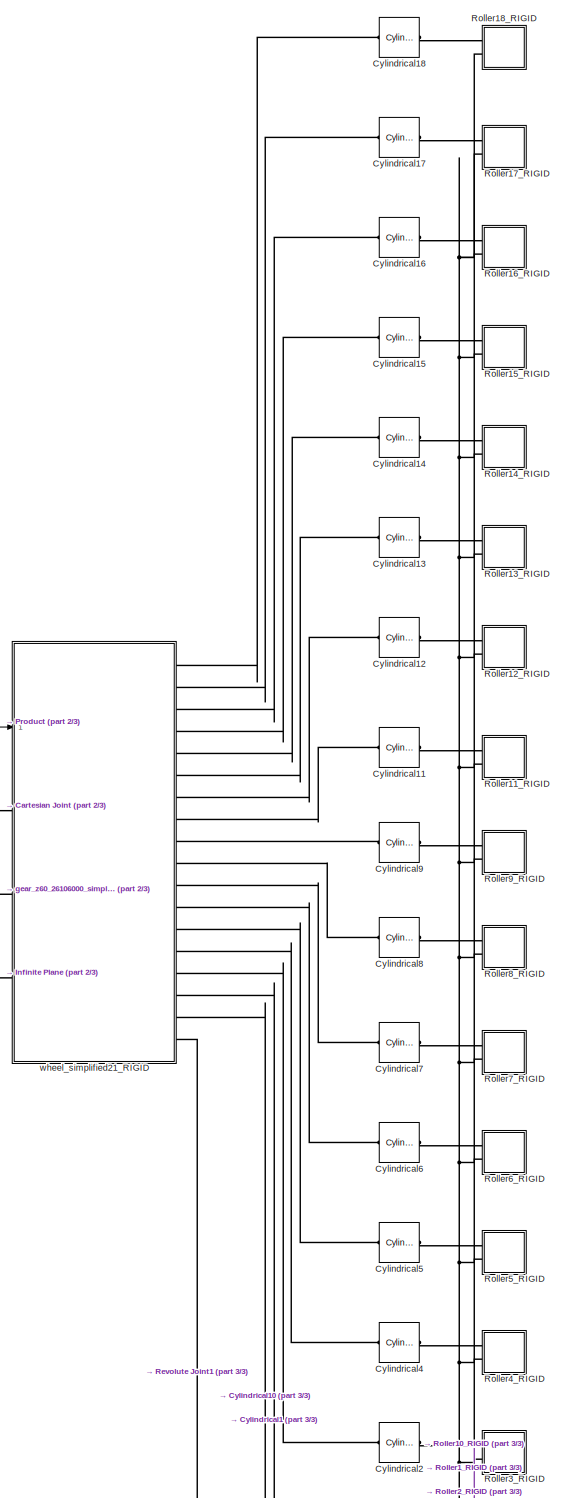
[diagram: root canvas - part 1/3, right side, full height]
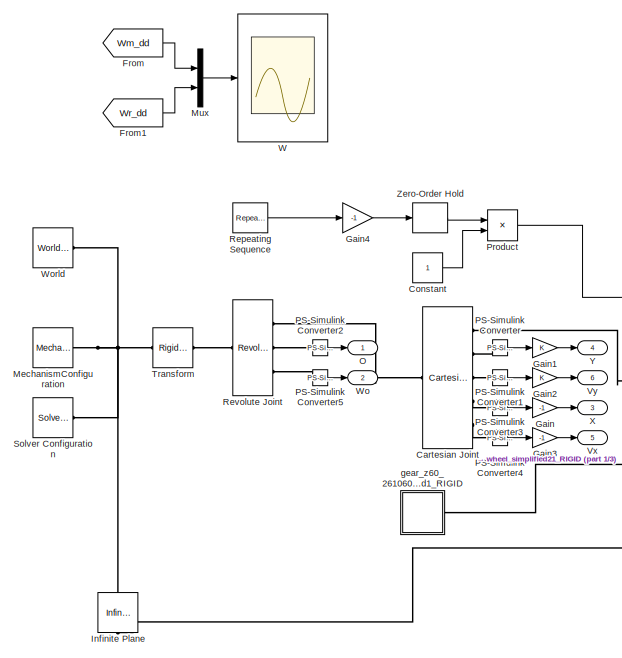
[diagram: root canvas - part 2/3, middle left region]
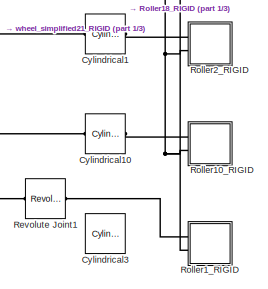
[diagram: root canvas - part 3/3, bottom right region]
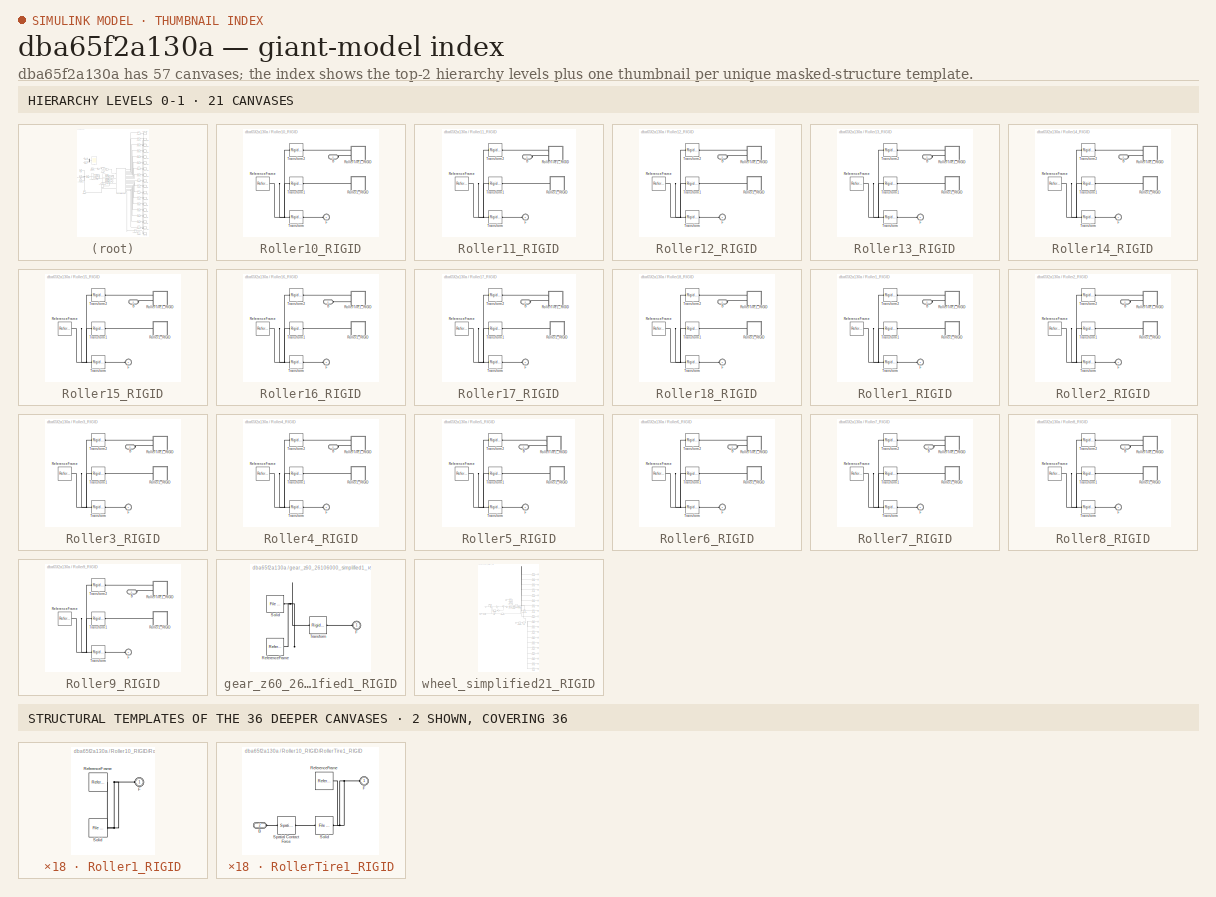
[diagram: thumbnail index - top-2 hierarchy levels (21 canvases) + 2 structural-template representatives of the remaining 36 canvases]
MODEL slx_dba65f2a130a
KIND model
CONFIG AbsTol = auto
CONFIG EnableMultiTasking = off
CONFIG FixedStep = auto
CONFIG MaxStep = auto
CONFIG MinStep = auto
CONFIG RelTol = 1e-3
CONFIG SampleTimeConstraint = Unconstrained
CONFIG SolverName = VariableStepAuto
CONFIG StartTime = 0.0
CONFIG StopTime = 1
WORKSPACE source: external: MATLAB File  (data not in archive)
BLOCK [Reference] Cartesian Joint  REF=sm_lib/Joints/Cartesian
Joint
  Ports = [0, 0, 0, 0, 0, 1, 5]
  SourceBlock = sm_lib/Joints/Cartesian\nJoint
  SourceProductBaseCode = MS
  SourceType = Cartesian\nJoint
BLOCK [Constant] Constant
BLOCK [Reference] Cylindrical1  REF=sm_lib/Joints/Cylindrical
Joint
  Commented = on
  Ports = [0, 0, 0, 0, 0, 1, 1]
  SourceBlock = sm_lib/Joints/Cylindrical\nJoint
  SourceProductBaseCode = MS
  SourceType = Cylindrical\nJoint
BLOCK [Reference] Cylindrical10  REF=sm_lib/Joints/Cylindrical
Joint
  Commented = on
  Ports = [0, 0, 0, 0, 0, 1, 1]
  SourceBlock = sm_lib/Joints/Cylindrical\nJoint
  SourceProductBaseCode = MS
  SourceType = Cylindrical\nJoint
BLOCK [Reference] Cylindrical11  REF=sm_lib/Joints/Cylindrical
Joint
  Commented = on
  Ports = [0, 0, 0, 0, 0, 1, 1]
  SourceBlock = sm_lib/Joints/Cylindrical\nJoint
  SourceProductBaseCode = MS
  SourceType = Cylindrical\nJoint
BLOCK [Reference] Cylindrical12  REF=sm_lib/Joints/Cylindrical
Joint
  Commented = on
  Ports = [0, 0, 0, 0, 0, 1, 1]
  SourceBlock = sm_lib/Joints/Cylindrical\nJoint
  SourceProductBaseCode = MS
  SourceType = Cylindrical\nJoint
BLOCK [Reference] Cylindrical13  REF=sm_lib/Joints/Cylindrical
Joint
  Commented = on
  Ports = [0, 0, 0, 0, 0, 1, 1]
  SourceBlock = sm_lib/Joints/Cylindrical\nJoint
  SourceProductBaseCode = MS
  SourceType = Cylindrical\nJoint
BLOCK [Reference] Cylindrical14  REF=sm_lib/Joints/Cylindrical
Joint
  Commented = on
  Ports = [0, 0, 0, 0, 0, 1, 1]
  SourceBlock = sm_lib/Joints/Cylindrical\nJoint
  SourceProductBaseCode = MS
  SourceType = Cylindrical\nJoint
BLOCK [Reference] Cylindrical15  REF=sm_lib/Joints/Cylindrical
Joint
  Commented = on
  Ports = [0, 0, 0, 0, 0, 1, 1]
  SourceBlock = sm_lib/Joints/Cylindrical\nJoint
  SourceProductBaseCode = MS
  SourceType = Cylindrical\nJoint
BLOCK [Reference] Cylindrical16  REF=sm_lib/Joints/Cylindrical
Joint
  Commented = on
  Ports = [0, 0, 0, 0, 0, 1, 1]
  SourceBlock = sm_lib/Joints/Cylindrical\nJoint
  SourceProductBaseCode = MS
  SourceType = Cylindrical\nJoint
BLOCK [Reference] Cylindrical17  REF=sm_lib/Joints/Cylindrical
Joint
  Commented = on
  Ports = [0, 0, 0, 0, 0, 1, 1]
  SourceBlock = sm_lib/Joints/Cylindrical\nJoint
  SourceProductBaseCode = MS
  SourceType = Cylindrical\nJoint
BLOCK [Reference] Cylindrical18  REF=sm_lib/Joints/Cylindrical
Joint
  Commented = on
  Ports = [0, 0, 0, 0, 0, 1, 1]
  SourceBlock = sm_lib/Joints/Cylindrical\nJoint
  SourceProductBaseCode = MS
  SourceType = Cylindrical\nJoint
BLOCK [Reference] Cylindrical2  REF=sm_lib/Joints/Cylindrical
Joint
  Commented = on
  Ports = [0, 0, 0, 0, 0, 1, 1]
  SourceBlock = sm_lib/Joints/Cylindrical\nJoint
  SourceProductBaseCode = MS
  SourceType = Cylindrical\nJoint
BLOCK [Reference] Cylindrical3  REF=sm_lib/Joints/Cylindrical
Joint
  Commented = on
  Ports = [0, 0, 0, 0, 0, 1, 1]
  SourceBlock = sm_lib/Joints/Cylindrical\nJoint
  SourceProductBaseCode = MS
  SourceType = Cylindrical\nJoint
BLOCK [Reference] Cylindrical4  REF=sm_lib/Joints/Cylindrical
Joint
  Commented = on
  Ports = [0, 0, 0, 0, 0, 1, 1]
  SourceBlock = sm_lib/Joints/Cylindrical\nJoint
  SourceProductBaseCode = MS
  SourceType = Cylindrical\nJoint
BLOCK [Reference] Cylindrical5  REF=sm_lib/Joints/Cylindrical
Joint
  Commented = on
  Ports = [0, 0, 0, 0, 0, 1, 1]
  SourceBlock = sm_lib/Joints/Cylindrical\nJoint
  SourceProductBaseCode = MS
  SourceType = Cylindrical\nJoint
BLOCK [Reference] Cylindrical6  REF=sm_lib/Joints/Cylindrical
Joint
  Commented = on
  Ports = [0, 0, 0, 0, 0, 1, 1]
  SourceBlock = sm_lib/Joints/Cylindrical\nJoint
  SourceProductBaseCode = MS
  SourceType = Cylindrical\nJoint
BLOCK [Reference] Cylindrical7  REF=sm_lib/Joints/Cylindrical
Joint
  Commented = on
  Ports = [0, 0, 0, 0, 0, 1, 1]
  SourceBlock = sm_lib/Joints/Cylindrical\nJoint
  SourceProductBaseCode = MS
  SourceType = Cylindrical\nJoint
BLOCK [Reference] Cylindrical8  REF=sm_lib/Joints/Cylindrical
Joint
  Commented = on
  Ports = [0, 0, 0, 0, 0, 1, 1]
  SourceBlock = sm_lib/Joints/Cylindrical\nJoint
  SourceProductBaseCode = MS
  SourceType = Cylindrical\nJoint
BLOCK [Reference] Cylindrical9  REF=sm_lib/Joints/Cylindrical
Joint
  Commented = on
  Ports = [0, 0, 0, 0, 0, 1, 1]
  SourceBlock = sm_lib/Joints/Cylindrical\nJoint
  SourceProductBaseCode = MS
  SourceType = Cylindrical\nJoint
BLOCK [From] From
  GotoTag = Wm_dd
  TagVisibility = global
BLOCK [From] From1
  GotoTag = Wr_dd
  TagVisibility = global
BLOCK [Gain] Gain
  Gain = -1
BLOCK [Gain] Gain1
BLOCK [Gain] Gain2
BLOCK [Gain] Gain3
  Gain = -1
BLOCK [Gain] Gain4
  Gain = -1
BLOCK [Reference] Infinite Plane  REF=sm_lib/Curves and Surfaces/Infinite Plane
  NameLocation = left
  Ports = [0, 0, 0, 0, 0, 1, 1]
  SourceBlock = sm_lib/Curves and Surfaces/Infinite Plane
  SourceProductBaseCode = MS
  SourceType = Infinite Plane
BLOCK [Reference] MechanismConfiguration  REF=sm_lib/Utilities/Mechanism
Configuration
  Ports = [0, 0, 0, 0, 0, 0, 1]
  SourceBlock = sm_lib/Utilities/Mechanism\nConfiguration
  SourceProductBaseCode = MS
  SourceType = Mechanism\nConfiguration
BLOCK [Mux] Mux
  DisplayOption = bar
  Inputs = 2
  Ports = [2, 1]
BLOCK [Outport] O
BLOCK [Reference] PS-Simulink Converter  REF=nesl_utility/PS-Simulink
Converter
  Ports = [0, 1, 0, 0, 0, 1]
  SourceBlock = nesl_utility/PS-Simulink\nConverter
  SourceProductBaseCode = SS
  SourceType = PS-Simulink\nConverter
BLOCK [Reference] PS-Simulink Converter1  REF=nesl_utility/PS-Simulink
Converter
  Ports = [0, 1, 0, 0, 0, 1]
  SourceBlock = nesl_utility/PS-Simulink\nConverter
  SourceProductBaseCode = SS
  SourceType = PS-Simulink\nConverter
BLOCK [Reference] PS-Simulink Converter2  REF=nesl_utility/PS-Simulink
Converter
  Ports = [0, 1, 0, 0, 0, 1]
  SourceBlock = nesl_utility/PS-Simulink\nConverter
  SourceProductBaseCode = SS
  SourceType = PS-Simulink\nConverter
BLOCK [Reference] PS-Simulink Converter3  REF=nesl_utility/PS-Simulink
Converter
  Ports = [0, 1, 0, 0, 0, 1]
  SourceBlock = nesl_utility/PS-Simulink\nConverter
  SourceProductBaseCode = SS
  SourceType = PS-Simulink\nConverter
BLOCK [Reference] PS-Simulink Converter4  REF=nesl_utility/PS-Simulink
Converter
  Ports = [0, 1, 0, 0, 0, 1]
  SourceBlock = nesl_utility/PS-Simulink\nConverter
  SourceProductBaseCode = SS
  SourceType = PS-Simulink\nConverter
BLOCK [Reference] PS-Simulink Converter5  REF=nesl_utility/PS-Simulink
Converter
  Ports = [0, 1, 0, 0, 0, 1]
  SourceBlock = nesl_utility/PS-Simulink\nConverter
  SourceProductBaseCode = SS
  SourceType = PS-Simulink\nConverter
BLOCK [Product] Product
  Ports = [2, 1]
BLOCK [Reference] Repeating Sequence  REF=simulink/Sources/Repeating
Sequence
  Ports = [0, 1]
  SourceBlock = simulink/Sources/Repeating\nSequence
  SourceProductBaseCode = SL
  SourceType = Repeating table
BLOCK [Reference] Revolute Joint  REF=sm_lib/Joints/Revolute Joint
  Ports = [0, 0, 0, 0, 0, 1, 3]
  SourceBlock = sm_lib/Joints/Revolute Joint
  SourceProductBaseCode = MS
  SourceType = Revolute Joint
BLOCK [Reference] Revolute Joint1  REF=sm_lib/Joints/Revolute Joint
  Commented = on
  Ports = [0, 0, 0, 0, 0, 1, 1]
  SourceBlock = sm_lib/Joints/Revolute Joint
  SourceProductBaseCode = MS
  SourceType = Revolute Joint
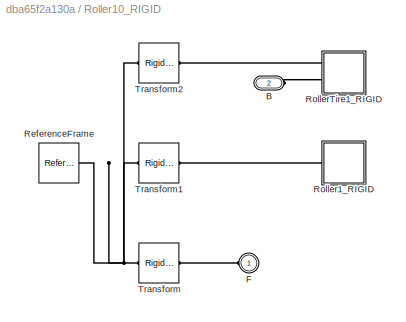
BLOCK [SubSystem] Roller10_RIGID
  Commented = on
  Ports = [0, 0, 0, 0, 0, 2]
  RequestExecContextInheritance = off
BLOCK [PMIOPort] Roller10_RIGID/B
  Port = 2
  Side = Left
BLOCK [PMIOPort] Roller10_RIGID/F
  Side = Left
BLOCK [Reference] Roller10_RIGID/ReferenceFrame  REF=sm_lib/Frames and
Transforms/Reference
Frame
  Ports = [0, 0, 0, 0, 0, 0, 1]
  SourceBlock = sm_lib/Frames and\nTransforms/Reference\nFrame
  SourceProductBaseCode = MS
  SourceType = Reference\nFrame
BLOCK [SubSystem] Roller10_RIGID/Roller1_RIGID
  Ports = [0, 0, 0, 0, 0, 1]
  RequestExecContextInheritance = off
BLOCK [PMIOPort] Roller10_RIGID/Roller1_RIGID/F
  Side = Left
BLOCK [Reference] Roller10_RIGID/Roller1_RIGID/ReferenceFrame  REF=sm_lib/Frames and
Transforms/Reference
Frame
  Ports = [0, 0, 0, 0, 0, 0, 1]
  SourceBlock = sm_lib/Frames and\nTransforms/Reference\nFrame
  SourceProductBaseCode = MS
  SourceType = Reference\nFrame
BLOCK [Reference] Roller10_RIGID/Roller1_RIGID/Solid  REF=sm_lib/Body Elements/File Solid
  Ports = [0, 0, 0, 0, 0, 0, 1]
  SourceBlock = sm_lib/Body Elements/File Solid
  SourceProductBaseCode = MS
  SourceType = File Solid
BLOCK [SubSystem] Roller10_RIGID/RollerTire1_RIGID
  Ports = [0, 0, 0, 0, 0, 2]
  RequestExecContextInheritance = off
BLOCK [PMIOPort] Roller10_RIGID/RollerTire1_RIGID/B
  Port = 2
  Side = Left
BLOCK [PMIOPort] Roller10_RIGID/RollerTire1_RIGID/F
  Side = Left
BLOCK [Reference] Roller10_RIGID/RollerTire1_RIGID/ReferenceFrame  REF=sm_lib/Frames and
Transforms/Reference
Frame
  Ports = [0, 0, 0, 0, 0, 0, 1]
  SourceBlock = sm_lib/Frames and\nTransforms/Reference\nFrame
  SourceProductBaseCode = MS
  SourceType = Reference\nFrame
BLOCK [Reference] Roller10_RIGID/RollerTire1_RIGID/Solid  REF=sm_lib/Body Elements/File Solid
  Ports = [0, 0, 0, 0, 0, 1, 1]
  SourceBlock = sm_lib/Body Elements/File Solid
  SourceProductBaseCode = MS
  SourceType = File Solid
BLOCK [Reference] Roller10_RIGID/RollerTire1_RIGID/Spatial Contact Force  REF=sm_lib/Forces and
Torques/Spatial
Contact Force
  Ports = [0, 0, 0, 0, 0, 1, 1]
  SourceBlock = sm_lib/Forces and\nTorques/Spatial\nContact Force
  SourceProductBaseCode = MS
  SourceType = Spatial\nContact Force
BLOCK [Reference] Roller10_RIGID/Transform  REF=sm_lib/Frames and
Transforms/Rigid
Transform
  Ports = [0, 0, 0, 0, 0, 1, 1]
  SourceBlock = sm_lib/Frames and\nTransforms/Rigid\nTransform
  SourceProductBaseCode = MS
  SourceType = Rigid\nTransform
BLOCK [Reference] Roller10_RIGID/Transform1  REF=sm_lib/Frames and
Transforms/Rigid
Transform
  Ports = [0, 0, 0, 0, 0, 1, 1]
  SourceBlock = sm_lib/Frames and\nTransforms/Rigid\nTransform
  SourceProductBaseCode = MS
  SourceType = Rigid\nTransform
BLOCK [Reference] Roller10_RIGID/Transform2  REF=sm_lib/Frames and
Transforms/Rigid
Transform
  Ports = [0, 0, 0, 0, 0, 1, 1]
  SourceBlock = sm_lib/Frames and\nTransforms/Rigid\nTransform
  SourceProductBaseCode = MS
  SourceType = Rigid\nTransform
BLOCK [SubSystem] Roller11_RIGID
  Commented = on
  Ports = [0, 0, 0, 0, 0, 2]
  RequestExecContextInheritance = off
BLOCK [PMIOPort] Roller11_RIGID/B
  Port = 2
  Side = Left
BLOCK [PMIOPort] Roller11_RIGID/F
  Side = Left
BLOCK [Reference] Roller11_RIGID/ReferenceFrame  REF=sm_lib/Frames and
Transforms/Reference
Frame
  Ports = [0, 0, 0, 0, 0, 0, 1]
  SourceBlock = sm_lib/Frames and\nTransforms/Reference\nFrame
  SourceProductBaseCode = MS
  SourceType = Reference\nFrame
BLOCK [SubSystem] Roller11_RIGID/Roller1_RIGID
  Ports = [0, 0, 0, 0, 0, 1]
  RequestExecContextInheritance = off
BLOCK [PMIOPort] Roller11_RIGID/Roller1_RIGID/F
  Side = Left
BLOCK [Reference] Roller11_RIGID/Roller1_RIGID/ReferenceFrame  REF=sm_lib/Frames and
Transforms/Reference
Frame
  Ports = [0, 0, 0, 0, 0, 0, 1]
  SourceBlock = sm_lib/Frames and\nTransforms/Reference\nFrame
  SourceProductBaseCode = MS
  SourceType = Reference\nFrame
BLOCK [Reference] Roller11_RIGID/Roller1_RIGID/Solid  REF=sm_lib/Body Elements/File Solid
  Ports = [0, 0, 0, 0, 0, 0, 1]
  SourceBlock = sm_lib/Body Elements/File Solid
  SourceProductBaseCode = MS
  SourceType = File Solid
BLOCK [SubSystem] Roller11_RIGID/RollerTire1_RIGID
  Ports = [0, 0, 0, 0, 0, 2]
  RequestExecContextInheritance = off
BLOCK [PMIOPort] Roller11_RIGID/RollerTire1_RIGID/B
  Port = 2
  Side = Left
BLOCK [PMIOPort] Roller11_RIGID/RollerTire1_RIGID/F
  Side = Left
BLOCK [Reference] Roller11_RIGID/RollerTire1_RIGID/ReferenceFrame  REF=sm_lib/Frames and
Transforms/Reference
Frame
  Ports = [0, 0, 0, 0, 0, 0, 1]
  SourceBlock = sm_lib/Frames and\nTransforms/Reference\nFrame
  SourceProductBaseCode = MS
  SourceType = Reference\nFrame
BLOCK [Reference] Roller11_RIGID/RollerTire1_RIGID/Solid  REF=sm_lib/Body Elements/File Solid
  Ports = [0, 0, 0, 0, 0, 1, 1]
  SourceBlock = sm_lib/Body Elements/File Solid
  SourceProductBaseCode = MS
  SourceType = File Solid
BLOCK [Reference] Roller11_RIGID/RollerTire1_RIGID/Spatial Contact Force  REF=sm_lib/Forces and
Torques/Spatial
Contact Force
  Ports = [0, 0, 0, 0, 0, 1, 1]
  SourceBlock = sm_lib/Forces and\nTorques/Spatial\nContact Force
  SourceProductBaseCode = MS
  SourceType = Spatial\nContact Force
BLOCK [Reference] Roller11_RIGID/Transform  REF=sm_lib/Frames and
Transforms/Rigid
Transform
  Ports = [0, 0, 0, 0, 0, 1, 1]
  SourceBlock = sm_lib/Frames and\nTransforms/Rigid\nTransform
  SourceProductBaseCode = MS
  SourceType = Rigid\nTransform
BLOCK [Reference] Roller11_RIGID/Transform1  REF=sm_lib/Frames and
Transforms/Rigid
Transform
  Ports = [0, 0, 0, 0, 0, 1, 1]
  SourceBlock = sm_lib/Frames and\nTransforms/Rigid\nTransform
  SourceProductBaseCode = MS
  SourceType = Rigid\nTransform
BLOCK [Reference] Roller11_RIGID/Transform2  REF=sm_lib/Frames and
Transforms/Rigid
Transform
  Ports = [0, 0, 0, 0, 0, 1, 1]
  SourceBlock = sm_lib/Frames and\nTransforms/Rigid\nTransform
  SourceProductBaseCode = MS
  SourceType = Rigid\nTransform
BLOCK [SubSystem] Roller12_RIGID
  Commented = on
  Ports = [0, 0, 0, 0, 0, 2]
  RequestExecContextInheritance = off
BLOCK [PMIOPort] Roller12_RIGID/B
  Port = 2
  Side = Left
BLOCK [PMIOPort] Roller12_RIGID/F
  Side = Left
BLOCK [Reference] Roller12_RIGID/ReferenceFrame  REF=sm_lib/Frames and
Transforms/Reference
Frame
  Ports = [0, 0, 0, 0, 0, 0, 1]
  SourceBlock = sm_lib/Frames and\nTransforms/Reference\nFrame
  SourceProductBaseCode = MS
  SourceType = Reference\nFrame
BLOCK [SubSystem] Roller12_RIGID/Roller1_RIGID
  Ports = [0, 0, 0, 0, 0, 1]
  RequestExecContextInheritance = off
BLOCK [PMIOPort] Roller12_RIGID/Roller1_RIGID/F
  Side = Left
BLOCK [Reference] Roller12_RIGID/Roller1_RIGID/ReferenceFrame  REF=sm_lib/Frames and
Transforms/Reference
Frame
  Ports = [0, 0, 0, 0, 0, 0, 1]
  SourceBlock = sm_lib/Frames and\nTransforms/Reference\nFrame
  SourceProductBaseCode = MS
  SourceType = Reference\nFrame
BLOCK [Reference] Roller12_RIGID/Roller1_RIGID/Solid  REF=sm_lib/Body Elements/File Solid
  Ports = [0, 0, 0, 0, 0, 0, 1]
  SourceBlock = sm_lib/Body Elements/File Solid
  SourceProductBaseCode = MS
  SourceType = File Solid
BLOCK [SubSystem] Roller12_RIGID/RollerTire1_RIGID
  Ports = [0, 0, 0, 0, 0, 2]
  RequestExecContextInheritance = off
BLOCK [PMIOPort] Roller12_RIGID/RollerTire1_RIGID/B
  Port = 2
  Side = Left
BLOCK [PMIOPort] Roller12_RIGID/RollerTire1_RIGID/F
  Side = Left
BLOCK [Reference] Roller12_RIGID/RollerTire1_RIGID/ReferenceFrame  REF=sm_lib/Frames and
Transforms/Reference
Frame
  Ports = [0, 0, 0, 0, 0, 0, 1]
  SourceBlock = sm_lib/Frames and\nTransforms/Reference\nFrame
  SourceProductBaseCode = MS
  SourceType = Reference\nFrame
BLOCK [Reference] Roller12_RIGID/RollerTire1_RIGID/Solid  REF=sm_lib/Body Elements/File Solid
  Ports = [0, 0, 0, 0, 0, 1, 1]
  SourceBlock = sm_lib/Body Elements/File Solid
  SourceProductBaseCode = MS
  SourceType = File Solid
BLOCK [Reference] Roller12_RIGID/RollerTire1_RIGID/Spatial Contact Force  REF=sm_lib/Forces and
Torques/Spatial
Contact Force
  Ports = [0, 0, 0, 0, 0, 1, 1]
  SourceBlock = sm_lib/Forces and\nTorques/Spatial\nContact Force
  SourceProductBaseCode = MS
  SourceType = Spatial\nContact Force
BLOCK [Reference] Roller12_RIGID/Transform  REF=sm_lib/Frames and
Transforms/Rigid
Transform
  Ports = [0, 0, 0, 0, 0, 1, 1]
  SourceBlock = sm_lib/Frames and\nTransforms/Rigid\nTransform
  SourceProductBaseCode = MS
  SourceType = Rigid\nTransform
BLOCK [Reference] Roller12_RIGID/Transform1  REF=sm_lib/Frames and
Transforms/Rigid
Transform
  Ports = [0, 0, 0, 0, 0, 1, 1]
  SourceBlock = sm_lib/Frames and\nTransforms/Rigid\nTransform
  SourceProductBaseCode = MS
  SourceType = Rigid\nTransform
BLOCK [Reference] Roller12_RIGID/Transform2  REF=sm_lib/Frames and
Transforms/Rigid
Transform
  Ports = [0, 0, 0, 0, 0, 1, 1]
  SourceBlock = sm_lib/Frames and\nTransforms/Rigid\nTransform
  SourceProductBaseCode = MS
  SourceType = Rigid\nTransform
BLOCK [SubSystem] Roller13_RIGID
  Commented = on
  Ports = [0, 0, 0, 0, 0, 2]
  RequestExecContextInheritance = off
BLOCK [PMIOPort] Roller13_RIGID/B
  Port = 2
  Side = Left
BLOCK [PMIOPort] Roller13_RIGID/F
  Side = Left
BLOCK [Reference] Roller13_RIGID/ReferenceFrame  REF=sm_lib/Frames and
Transforms/Reference
Frame
  Ports = [0, 0, 0, 0, 0, 0, 1]
  SourceBlock = sm_lib/Frames and\nTransforms/Reference\nFrame
  SourceProductBaseCode = MS
  SourceType = Reference\nFrame
BLOCK [SubSystem] Roller13_RIGID/Roller1_RIGID
  Ports = [0, 0, 0, 0, 0, 1]
  RequestExecContextInheritance = off
BLOCK [PMIOPort] Roller13_RIGID/Roller1_RIGID/F
  Side = Left
BLOCK [Reference] Roller13_RIGID/Roller1_RIGID/ReferenceFrame  REF=sm_lib/Frames and
Transforms/Reference
Frame
  Ports = [0, 0, 0, 0, 0, 0, 1]
  SourceBlock = sm_lib/Frames and\nTransforms/Reference\nFrame
  SourceProductBaseCode = MS
  SourceType = Reference\nFrame
BLOCK [Reference] Roller13_RIGID/Roller1_RIGID/Solid  REF=sm_lib/Body Elements/File Solid
  Ports = [0, 0, 0, 0, 0, 0, 1]
  SourceBlock = sm_lib/Body Elements/File Solid
  SourceProductBaseCode = MS
  SourceType = File Solid
BLOCK [SubSystem] Roller13_RIGID/RollerTire1_RIGID
  Ports = [0, 0, 0, 0, 0, 2]
  RequestExecContextInheritance = off
BLOCK [PMIOPort] Roller13_RIGID/RollerTire1_RIGID/B
  Port = 2
  Side = Left
BLOCK [PMIOPort] Roller13_RIGID/RollerTire1_RIGID/F
  Side = Left
BLOCK [Reference] Roller13_RIGID/RollerTire1_RIGID/ReferenceFrame  REF=sm_lib/Frames and
Transforms/Reference
Frame
  Ports = [0, 0, 0, 0, 0, 0, 1]
  SourceBlock = sm_lib/Frames and\nTransforms/Reference\nFrame
  SourceProductBaseCode = MS
  SourceType = Reference\nFrame
BLOCK [Reference] Roller13_RIGID/RollerTire1_RIGID/Solid  REF=sm_lib/Body Elements/File Solid
  Ports = [0, 0, 0, 0, 0, 1, 1]
  SourceBlock = sm_lib/Body Elements/File Solid
  SourceProductBaseCode = MS
  SourceType = File Solid
BLOCK [Reference] Roller13_RIGID/RollerTire1_RIGID/Spatial Contact Force  REF=sm_lib/Forces and
Torques/Spatial
Contact Force
  Ports = [0, 0, 0, 0, 0, 1, 1]
  SourceBlock = sm_lib/Forces and\nTorques/Spatial\nContact Force
  SourceProductBaseCode = MS
  SourceType = Spatial\nContact Force
BLOCK [Reference] Roller13_RIGID/Transform  REF=sm_lib/Frames and
Transforms/Rigid
Transform
  Ports = [0, 0, 0, 0, 0, 1, 1]
  SourceBlock = sm_lib/Frames and\nTransforms/Rigid\nTransform
  SourceProductBaseCode = MS
  SourceType = Rigid\nTransform
BLOCK [Reference] Roller13_RIGID/Transform1  REF=sm_lib/Frames and
Transforms/Rigid
Transform
  Ports = [0, 0, 0, 0, 0, 1, 1]
  SourceBlock = sm_lib/Frames and\nTransforms/Rigid\nTransform
  SourceProductBaseCode = MS
  SourceType = Rigid\nTransform
BLOCK [Reference] Roller13_RIGID/Transform2  REF=sm_lib/Frames and
Transforms/Rigid
Transform
  Ports = [0, 0, 0, 0, 0, 1, 1]
  SourceBlock = sm_lib/Frames and\nTransforms/Rigid\nTransform
  SourceProductBaseCode = MS
  SourceType = Rigid\nTransform
BLOCK [SubSystem] Roller14_RIGID
  Commented = on
  Ports = [0, 0, 0, 0, 0, 2]
  RequestExecContextInheritance = off
BLOCK [PMIOPort] Roller14_RIGID/B
  Port = 2
  Side = Left
BLOCK [PMIOPort] Roller14_RIGID/F
  Side = Left
BLOCK [Reference] Roller14_RIGID/ReferenceFrame  REF=sm_lib/Frames and
Transforms/Reference
Frame
  Ports = [0, 0, 0, 0, 0, 0, 1]
  SourceBlock = sm_lib/Frames and\nTransforms/Reference\nFrame
  SourceProductBaseCode = MS
  SourceType = Reference\nFrame
BLOCK [SubSystem] Roller14_RIGID/Roller1_RIGID
  Ports = [0, 0, 0, 0, 0, 1]
  RequestExecContextInheritance = off
BLOCK [PMIOPort] Roller14_RIGID/Roller1_RIGID/F
  Side = Left
BLOCK [Reference] Roller14_RIGID/Roller1_RIGID/ReferenceFrame  REF=sm_lib/Frames and
Transforms/Reference
Frame
  Ports = [0, 0, 0, 0, 0, 0, 1]
  SourceBlock = sm_lib/Frames and\nTransforms/Reference\nFrame
  SourceProductBaseCode = MS
  SourceType = Reference\nFrame
BLOCK [Reference] Roller14_RIGID/Roller1_RIGID/Solid  REF=sm_lib/Body Elements/File Solid
  Ports = [0, 0, 0, 0, 0, 0, 1]
  SourceBlock = sm_lib/Body Elements/File Solid
  SourceProductBaseCode = MS
  SourceType = File Solid
BLOCK [SubSystem] Roller14_RIGID/RollerTire1_RIGID
  Ports = [0, 0, 0, 0, 0, 2]
  RequestExecContextInheritance = off
BLOCK [PMIOPort] Roller14_RIGID/RollerTire1_RIGID/B
  Port = 2
  Side = Left
BLOCK [PMIOPort] Roller14_RIGID/RollerTire1_RIGID/F
  Side = Left
BLOCK [Reference] Roller14_RIGID/RollerTire1_RIGID/ReferenceFrame  REF=sm_lib/Frames and
Transforms/Reference
Frame
  Ports = [0, 0, 0, 0, 0, 0, 1]
  SourceBlock = sm_lib/Frames and\nTransforms/Reference\nFrame
  SourceProductBaseCode = MS
  SourceType = Reference\nFrame
BLOCK [Reference] Roller14_RIGID/RollerTire1_RIGID/Solid  REF=sm_lib/Body Elements/File Solid
  Ports = [0, 0, 0, 0, 0, 1, 1]
  SourceBlock = sm_lib/Body Elements/File Solid
  SourceProductBaseCode = MS
  SourceType = File Solid
BLOCK [Reference] Roller14_RIGID/RollerTire1_RIGID/Spatial Contact Force  REF=sm_lib/Forces and
Torques/Spatial
Contact Force
  Ports = [0, 0, 0, 0, 0, 1, 1]
  SourceBlock = sm_lib/Forces and\nTorques/Spatial\nContact Force
  SourceProductBaseCode = MS
  SourceType = Spatial\nContact Force
BLOCK [Reference] Roller14_RIGID/Transform  REF=sm_lib/Frames and
Transforms/Rigid
Transform
  Ports = [0, 0, 0, 0, 0, 1, 1]
  SourceBlock = sm_lib/Frames and\nTransforms/Rigid\nTransform
  SourceProductBaseCode = MS
  SourceType = Rigid\nTransform
BLOCK [Reference] Roller14_RIGID/Transform1  REF=sm_lib/Frames and
Transforms/Rigid
Transform
  Ports = [0, 0, 0, 0, 0, 1, 1]
  SourceBlock = sm_lib/Frames and\nTransforms/Rigid\nTransform
  SourceProductBaseCode = MS
  SourceType = Rigid\nTransform
BLOCK [Reference] Roller14_RIGID/Transform2  REF=sm_lib/Frames and
Transforms/Rigid
Transform
  Ports = [0, 0, 0, 0, 0, 1, 1]
  SourceBlock = sm_lib/Frames and\nTransforms/Rigid\nTransform
  SourceProductBaseCode = MS
  SourceType = Rigid\nTransform
BLOCK [SubSystem] Roller15_RIGID
  Commented = on
  Ports = [0, 0, 0, 0, 0, 2]
  RequestExecContextInheritance = off
BLOCK [PMIOPort] Roller15_RIGID/B
  Port = 2
  Side = Left
BLOCK [PMIOPort] Roller15_RIGID/F
  Side = Left
BLOCK [Reference] Roller15_RIGID/ReferenceFrame  REF=sm_lib/Frames and
Transforms/Reference
Frame
  Ports = [0, 0, 0, 0, 0, 0, 1]
  SourceBlock = sm_lib/Frames and\nTransforms/Reference\nFrame
  SourceProductBaseCode = MS
  SourceType = Reference\nFrame
BLOCK [SubSystem] Roller15_RIGID/Roller1_RIGID
  Ports = [0, 0, 0, 0, 0, 1]
  RequestExecContextInheritance = off
BLOCK [PMIOPort] Roller15_RIGID/Roller1_RIGID/F
  Side = Left
BLOCK [Reference] Roller15_RIGID/Roller1_RIGID/ReferenceFrame  REF=sm_lib/Frames and
Transforms/Reference
Frame
  Ports = [0, 0, 0, 0, 0, 0, 1]
  SourceBlock = sm_lib/Frames and\nTransforms/Reference\nFrame
  SourceProductBaseCode = MS
  SourceType = Reference\nFrame
BLOCK [Reference] Roller15_RIGID/Roller1_RIGID/Solid  REF=sm_lib/Body Elements/File Solid
  Ports = [0, 0, 0, 0, 0, 0, 1]
  SourceBlock = sm_lib/Body Elements/File Solid
  SourceProductBaseCode = MS
  SourceType = File Solid
BLOCK [SubSystem] Roller15_RIGID/RollerTire1_RIGID
  Ports = [0, 0, 0, 0, 0, 2]
  RequestExecContextInheritance = off
BLOCK [PMIOPort] Roller15_RIGID/RollerTire1_RIGID/B
  Port = 2
  Side = Left
BLOCK [PMIOPort] Roller15_RIGID/RollerTire1_RIGID/F
  Side = Left
BLOCK [Reference] Roller15_RIGID/RollerTire1_RIGID/ReferenceFrame  REF=sm_lib/Frames and
Transforms/Reference
Frame
  Ports = [0, 0, 0, 0, 0, 0, 1]
  SourceBlock = sm_lib/Frames and\nTransforms/Reference\nFrame
  SourceProductBaseCode = MS
  SourceType = Reference\nFrame
BLOCK [Reference] Roller15_RIGID/RollerTire1_RIGID/Solid  REF=sm_lib/Body Elements/File Solid
  Ports = [0, 0, 0, 0, 0, 1, 1]
  SourceBlock = sm_lib/Body Elements/File Solid
  SourceProductBaseCode = MS
  SourceType = File Solid
BLOCK [Reference] Roller15_RIGID/RollerTire1_RIGID/Spatial Contact Force  REF=sm_lib/Forces and
Torques/Spatial
Contact Force
  Ports = [0, 0, 0, 0, 0, 1, 1]
  SourceBlock = sm_lib/Forces and\nTorques/Spatial\nContact Force
  SourceProductBaseCode = MS
  SourceType = Spatial\nContact Force
BLOCK [Reference] Roller15_RIGID/Transform  REF=sm_lib/Frames and
Transforms/Rigid
Transform
  Ports = [0, 0, 0, 0, 0, 1, 1]
  SourceBlock = sm_lib/Frames and\nTransforms/Rigid\nTransform
  SourceProductBaseCode = MS
  SourceType = Rigid\nTransform
BLOCK [Reference] Roller15_RIGID/Transform1  REF=sm_lib/Frames and
Transforms/Rigid
Transform
  Ports = [0, 0, 0, 0, 0, 1, 1]
  SourceBlock = sm_lib/Frames and\nTransforms/Rigid\nTransform
  SourceProductBaseCode = MS
  SourceType = Rigid\nTransform
BLOCK [Reference] Roller15_RIGID/Transform2  REF=sm_lib/Frames and
Transforms/Rigid
Transform
  Ports = [0, 0, 0, 0, 0, 1, 1]
  SourceBlock = sm_lib/Frames and\nTransforms/Rigid\nTransform
  SourceProductBaseCode = MS
  SourceType = Rigid\nTransform
BLOCK [SubSystem] Roller16_RIGID
  Commented = on
  Ports = [0, 0, 0, 0, 0, 2]
  RequestExecContextInheritance = off
BLOCK [PMIOPort] Roller16_RIGID/B
  Port = 2
  Side = Left
BLOCK [PMIOPort] Roller16_RIGID/F
  Side = Left
BLOCK [Reference] Roller16_RIGID/ReferenceFrame  REF=sm_lib/Frames and
Transforms/Reference
Frame
  Ports = [0, 0, 0, 0, 0, 0, 1]
  SourceBlock = sm_lib/Frames and\nTransforms/Reference\nFrame
  SourceProductBaseCode = MS
  SourceType = Reference\nFrame
BLOCK [SubSystem] Roller16_RIGID/Roller1_RIGID
  Ports = [0, 0, 0, 0, 0, 1]
  RequestExecContextInheritance = off
BLOCK [PMIOPort] Roller16_RIGID/Roller1_RIGID/F
  Side = Left
BLOCK [Reference] Roller16_RIGID/Roller1_RIGID/ReferenceFrame  REF=sm_lib/Frames and
Transforms/Reference
Frame
  Ports = [0, 0, 0, 0, 0, 0, 1]
  SourceBlock = sm_lib/Frames and\nTransforms/Reference\nFrame
  SourceProductBaseCode = MS
  SourceType = Reference\nFrame
BLOCK [Reference] Roller16_RIGID/Roller1_RIGID/Solid  REF=sm_lib/Body Elements/File Solid
  Ports = [0, 0, 0, 0, 0, 0, 1]
  SourceBlock = sm_lib/Body Elements/File Solid
  SourceProductBaseCode = MS
  SourceType = File Solid
BLOCK [SubSystem] Roller16_RIGID/RollerTire1_RIGID
  Ports = [0, 0, 0, 0, 0, 2]
  RequestExecContextInheritance = off
BLOCK [PMIOPort] Roller16_RIGID/RollerTire1_RIGID/B
  Port = 2
  Side = Left
BLOCK [PMIOPort] Roller16_RIGID/RollerTire1_RIGID/F
  Side = Left
BLOCK [Reference] Roller16_RIGID/RollerTire1_RIGID/ReferenceFrame  REF=sm_lib/Frames and
Transforms/Reference
Frame
  Ports = [0, 0, 0, 0, 0, 0, 1]
  SourceBlock = sm_lib/Frames and\nTransforms/Reference\nFrame
  SourceProductBaseCode = MS
  SourceType = Reference\nFrame
BLOCK [Reference] Roller16_RIGID/RollerTire1_RIGID/Solid  REF=sm_lib/Body Elements/File Solid
  Ports = [0, 0, 0, 0, 0, 1, 1]
  SourceBlock = sm_lib/Body Elements/File Solid
  SourceProductBaseCode = MS
  SourceType = File Solid
BLOCK [Reference] Roller16_RIGID/RollerTire1_RIGID/Spatial Contact Force  REF=sm_lib/Forces and
Torques/Spatial
Contact Force
  Ports = [0, 0, 0, 0, 0, 1, 1]
  SourceBlock = sm_lib/Forces and\nTorques/Spatial\nContact Force
  SourceProductBaseCode = MS
  SourceType = Spatial\nContact Force
BLOCK [Reference] Roller16_RIGID/Transform  REF=sm_lib/Frames and
Transforms/Rigid
Transform
  Ports = [0, 0, 0, 0, 0, 1, 1]
  SourceBlock = sm_lib/Frames and\nTransforms/Rigid\nTransform
  SourceProductBaseCode = MS
  SourceType = Rigid\nTransform
BLOCK [Reference] Roller16_RIGID/Transform1  REF=sm_lib/Frames and
Transforms/Rigid
Transform
  Ports = [0, 0, 0, 0, 0, 1, 1]
  SourceBlock = sm_lib/Frames and\nTransforms/Rigid\nTransform
  SourceProductBaseCode = MS
  SourceType = Rigid\nTransform
BLOCK [Reference] Roller16_RIGID/Transform2  REF=sm_lib/Frames and
Transforms/Rigid
Transform
  Ports = [0, 0, 0, 0, 0, 1, 1]
  SourceBlock = sm_lib/Frames and\nTransforms/Rigid\nTransform
  SourceProductBaseCode = MS
  SourceType = Rigid\nTransform
BLOCK [SubSystem] Roller17_RIGID
  Commented = on
  Ports = [0, 0, 0, 0, 0, 2]
  RequestExecContextInheritance = off
BLOCK [PMIOPort] Roller17_RIGID/B
  Port = 2
  Side = Left
BLOCK [PMIOPort] Roller17_RIGID/F
  Side = Left
BLOCK [Reference] Roller17_RIGID/ReferenceFrame  REF=sm_lib/Frames and
Transforms/Reference
Frame
  Ports = [0, 0, 0, 0, 0, 0, 1]
  SourceBlock = sm_lib/Frames and\nTransforms/Reference\nFrame
  SourceProductBaseCode = MS
  SourceType = Reference\nFrame
BLOCK [SubSystem] Roller17_RIGID/Roller1_RIGID
  Ports = [0, 0, 0, 0, 0, 1]
  RequestExecContextInheritance = off
BLOCK [PMIOPort] Roller17_RIGID/Roller1_RIGID/F
  Side = Left
BLOCK [Reference] Roller17_RIGID/Roller1_RIGID/ReferenceFrame  REF=sm_lib/Frames and
Transforms/Reference
Frame
  Ports = [0, 0, 0, 0, 0, 0, 1]
  SourceBlock = sm_lib/Frames and\nTransforms/Reference\nFrame
  SourceProductBaseCode = MS
  SourceType = Reference\nFrame
BLOCK [Reference] Roller17_RIGID/Roller1_RIGID/Solid  REF=sm_lib/Body Elements/File Solid
  Ports = [0, 0, 0, 0, 0, 0, 1]
  SourceBlock = sm_lib/Body Elements/File Solid
  SourceProductBaseCode = MS
  SourceType = File Solid
BLOCK [SubSystem] Roller17_RIGID/RollerTire1_RIGID
  Ports = [0, 0, 0, 0, 0, 2]
  RequestExecContextInheritance = off
BLOCK [PMIOPort] Roller17_RIGID/RollerTire1_RIGID/B
  Port = 2
  Side = Left
BLOCK [PMIOPort] Roller17_RIGID/RollerTire1_RIGID/F
  Side = Left
BLOCK [Reference] Roller17_RIGID/RollerTire1_RIGID/ReferenceFrame  REF=sm_lib/Frames and
Transforms/Reference
Frame
  Ports = [0, 0, 0, 0, 0, 0, 1]
  SourceBlock = sm_lib/Frames and\nTransforms/Reference\nFrame
  SourceProductBaseCode = MS
  SourceType = Reference\nFrame
BLOCK [Reference] Roller17_RIGID/RollerTire1_RIGID/Solid  REF=sm_lib/Body Elements/File Solid
  Ports = [0, 0, 0, 0, 0, 1, 1]
  SourceBlock = sm_lib/Body Elements/File Solid
  SourceProductBaseCode = MS
  SourceType = File Solid
BLOCK [Reference] Roller17_RIGID/RollerTire1_RIGID/Spatial Contact Force  REF=sm_lib/Forces and
Torques/Spatial
Contact Force
  Ports = [0, 0, 0, 0, 0, 1, 1]
  SourceBlock = sm_lib/Forces and\nTorques/Spatial\nContact Force
  SourceProductBaseCode = MS
  SourceType = Spatial\nContact Force
BLOCK [Reference] Roller17_RIGID/Transform  REF=sm_lib/Frames and
Transforms/Rigid
Transform
  Ports = [0, 0, 0, 0, 0, 1, 1]
  SourceBlock = sm_lib/Frames and\nTransforms/Rigid\nTransform
  SourceProductBaseCode = MS
  SourceType = Rigid\nTransform
BLOCK [Reference] Roller17_RIGID/Transform1  REF=sm_lib/Frames and
Transforms/Rigid
Transform
  Ports = [0, 0, 0, 0, 0, 1, 1]
  SourceBlock = sm_lib/Frames and\nTransforms/Rigid\nTransform
  SourceProductBaseCode = MS
  SourceType = Rigid\nTransform
BLOCK [Reference] Roller17_RIGID/Transform2  REF=sm_lib/Frames and
Transforms/Rigid
Transform
  Ports = [0, 0, 0, 0, 0, 1, 1]
  SourceBlock = sm_lib/Frames and\nTransforms/Rigid\nTransform
  SourceProductBaseCode = MS
  SourceType = Rigid\nTransform
BLOCK [SubSystem] Roller18_RIGID
  Commented = on
  Ports = [0, 0, 0, 0, 0, 2]
  RequestExecContextInheritance = off
BLOCK [PMIOPort] Roller18_RIGID/B
  Port = 2
  Side = Left
BLOCK [PMIOPort] Roller18_RIGID/F
  Side = Left
BLOCK [Reference] Roller18_RIGID/ReferenceFrame  REF=sm_lib/Frames and
Transforms/Reference
Frame
  Ports = [0, 0, 0, 0, 0, 0, 1]
  SourceBlock = sm_lib/Frames and\nTransforms/Reference\nFrame
  SourceProductBaseCode = MS
  SourceType = Reference\nFrame
BLOCK [SubSystem] Roller18_RIGID/Roller1_RIGID
  Ports = [0, 0, 0, 0, 0, 1]
  RequestExecContextInheritance = off
BLOCK [PMIOPort] Roller18_RIGID/Roller1_RIGID/F
  Side = Left
BLOCK [Reference] Roller18_RIGID/Roller1_RIGID/ReferenceFrame  REF=sm_lib/Frames and
Transforms/Reference
Frame
  Ports = [0, 0, 0, 0, 0, 0, 1]
  SourceBlock = sm_lib/Frames and\nTransforms/Reference\nFrame
  SourceProductBaseCode = MS
  SourceType = Reference\nFrame
BLOCK [Reference] Roller18_RIGID/Roller1_RIGID/Solid  REF=sm_lib/Body Elements/File Solid
  Ports = [0, 0, 0, 0, 0, 0, 1]
  SourceBlock = sm_lib/Body Elements/File Solid
  SourceProductBaseCode = MS
  SourceType = File Solid
BLOCK [SubSystem] Roller18_RIGID/RollerTire1_RIGID
  Ports = [0, 0, 0, 0, 0, 2]
  RequestExecContextInheritance = off
BLOCK [PMIOPort] Roller18_RIGID/RollerTire1_RIGID/B
  Port = 2
  Side = Left
BLOCK [PMIOPort] Roller18_RIGID/RollerTire1_RIGID/F
  Side = Left
BLOCK [Reference] Roller18_RIGID/RollerTire1_RIGID/ReferenceFrame  REF=sm_lib/Frames and
Transforms/Reference
Frame
  Ports = [0, 0, 0, 0, 0, 0, 1]
  SourceBlock = sm_lib/Frames and\nTransforms/Reference\nFrame
  SourceProductBaseCode = MS
  SourceType = Reference\nFrame
BLOCK [Reference] Roller18_RIGID/RollerTire1_RIGID/Solid  REF=sm_lib/Body Elements/File Solid
  Ports = [0, 0, 0, 0, 0, 1, 1]
  SourceBlock = sm_lib/Body Elements/File Solid
  SourceProductBaseCode = MS
  SourceType = File Solid
BLOCK [Reference] Roller18_RIGID/RollerTire1_RIGID/Spatial Contact Force  REF=sm_lib/Forces and
Torques/Spatial
Contact Force
  Ports = [0, 0, 0, 0, 0, 1, 1]
  SourceBlock = sm_lib/Forces and\nTorques/Spatial\nContact Force
  SourceProductBaseCode = MS
  SourceType = Spatial\nContact Force
BLOCK [Reference] Roller18_RIGID/Transform  REF=sm_lib/Frames and
Transforms/Rigid
Transform
  Ports = [0, 0, 0, 0, 0, 1, 1]
  SourceBlock = sm_lib/Frames and\nTransforms/Rigid\nTransform
  SourceProductBaseCode = MS
  SourceType = Rigid\nTransform
BLOCK [Reference] Roller18_RIGID/Transform1  REF=sm_lib/Frames and
Transforms/Rigid
Transform
  Ports = [0, 0, 0, 0, 0, 1, 1]
  SourceBlock = sm_lib/Frames and\nTransforms/Rigid\nTransform
  SourceProductBaseCode = MS
  SourceType = Rigid\nTransform
BLOCK [Reference] Roller18_RIGID/Transform2  REF=sm_lib/Frames and
Transforms/Rigid
Transform
  Ports = [0, 0, 0, 0, 0, 1, 1]
  SourceBlock = sm_lib/Frames and\nTransforms/Rigid\nTransform
  SourceProductBaseCode = MS
  SourceType = Rigid\nTransform
BLOCK [SubSystem] Roller1_RIGID
  Commented = on
  Ports = [0, 0, 0, 0, 0, 2]
  RequestExecContextInheritance = off
BLOCK [PMIOPort] Roller1_RIGID/B
  Port = 2
  Side = Left
BLOCK [PMIOPort] Roller1_RIGID/F
  Side = Left
BLOCK [Reference] Roller1_RIGID/ReferenceFrame  REF=sm_lib/Frames and
Transforms/Reference
Frame
  Ports = [0, 0, 0, 0, 0, 0, 1]
  SourceBlock = sm_lib/Frames and\nTransforms/Reference\nFrame
  SourceProductBaseCode = MS
  SourceType = Reference\nFrame
BLOCK [SubSystem] Roller1_RIGID/Roller1_RIGID
  Ports = [0, 0, 0, 0, 0, 1]
  RequestExecContextInheritance = off
BLOCK [PMIOPort] Roller1_RIGID/Roller1_RIGID/F
  Side = Left
BLOCK [Reference] Roller1_RIGID/Roller1_RIGID/ReferenceFrame  REF=sm_lib/Frames and
Transforms/Reference
Frame
  Ports = [0, 0, 0, 0, 0, 0, 1]
  SourceBlock = sm_lib/Frames and\nTransforms/Reference\nFrame
  SourceProductBaseCode = MS
  SourceType = Reference\nFrame
BLOCK [Reference] Roller1_RIGID/Roller1_RIGID/Solid  REF=sm_lib/Body Elements/File Solid
  Ports = [0, 0, 0, 0, 0, 0, 1]
  SourceBlock = sm_lib/Body Elements/File Solid
  SourceProductBaseCode = MS
  SourceType = File Solid
BLOCK [SubSystem] Roller1_RIGID/RollerTire1_RIGID
  Ports = [0, 0, 0, 0, 0, 2]
  RequestExecContextInheritance = off
BLOCK [PMIOPort] Roller1_RIGID/RollerTire1_RIGID/B
  Port = 2
  Side = Left
BLOCK [PMIOPort] Roller1_RIGID/RollerTire1_RIGID/F
  Side = Left
BLOCK [Reference] Roller1_RIGID/RollerTire1_RIGID/ReferenceFrame  REF=sm_lib/Frames and
Transforms/Reference
Frame
  Ports = [0, 0, 0, 0, 0, 0, 1]
  SourceBlock = sm_lib/Frames and\nTransforms/Reference\nFrame
  SourceProductBaseCode = MS
  SourceType = Reference\nFrame
BLOCK [Reference] Roller1_RIGID/RollerTire1_RIGID/Solid  REF=sm_lib/Body Elements/File Solid
  Ports = [0, 0, 0, 0, 0, 1, 1]
  SourceBlock = sm_lib/Body Elements/File Solid
  SourceProductBaseCode = MS
  SourceType = File Solid
BLOCK [Reference] Roller1_RIGID/RollerTire1_RIGID/Spatial Contact Force  REF=sm_lib/Forces and
Torques/Spatial
Contact Force
  Ports = [0, 0, 0, 0, 0, 1, 1]
  SourceBlock = sm_lib/Forces and\nTorques/Spatial\nContact Force
  SourceProductBaseCode = MS
  SourceType = Spatial\nContact Force
BLOCK [Reference] Roller1_RIGID/Transform  REF=sm_lib/Frames and
Transforms/Rigid
Transform
  Ports = [0, 0, 0, 0, 0, 1, 1]
  SourceBlock = sm_lib/Frames and\nTransforms/Rigid\nTransform
  SourceProductBaseCode = MS
  SourceType = Rigid\nTransform
BLOCK [Reference] Roller1_RIGID/Transform1  REF=sm_lib/Frames and
Transforms/Rigid
Transform
  Ports = [0, 0, 0, 0, 0, 1, 1]
  SourceBlock = sm_lib/Frames and\nTransforms/Rigid\nTransform
  SourceProductBaseCode = MS
  SourceType = Rigid\nTransform
BLOCK [Reference] Roller1_RIGID/Transform2  REF=sm_lib/Frames and
Transforms/Rigid
Transform
  Ports = [0, 0, 0, 0, 0, 1, 1]
  SourceBlock = sm_lib/Frames and\nTransforms/Rigid\nTransform
  SourceProductBaseCode = MS
  SourceType = Rigid\nTransform
BLOCK [SubSystem] Roller2_RIGID
  Commented = on
  Ports = [0, 0, 0, 0, 0, 2]
  RequestExecContextInheritance = off
BLOCK [PMIOPort] Roller2_RIGID/B
  Port = 2
  Side = Left
BLOCK [PMIOPort] Roller2_RIGID/F
  Side = Left
BLOCK [Reference] Roller2_RIGID/ReferenceFrame  REF=sm_lib/Frames and
Transforms/Reference
Frame
  Ports = [0, 0, 0, 0, 0, 0, 1]
  SourceBlock = sm_lib/Frames and\nTransforms/Reference\nFrame
  SourceProductBaseCode = MS
  SourceType = Reference\nFrame
BLOCK [SubSystem] Roller2_RIGID/Roller1_RIGID
  Ports = [0, 0, 0, 0, 0, 1]
  RequestExecContextInheritance = off
BLOCK [PMIOPort] Roller2_RIGID/Roller1_RIGID/F
  Side = Left
BLOCK [Reference] Roller2_RIGID/Roller1_RIGID/ReferenceFrame  REF=sm_lib/Frames and
Transforms/Reference
Frame
  Ports = [0, 0, 0, 0, 0, 0, 1]
  SourceBlock = sm_lib/Frames and\nTransforms/Reference\nFrame
  SourceProductBaseCode = MS
  SourceType = Reference\nFrame
BLOCK [Reference] Roller2_RIGID/Roller1_RIGID/Solid  REF=sm_lib/Body Elements/File Solid
  Ports = [0, 0, 0, 0, 0, 0, 1]
  SourceBlock = sm_lib/Body Elements/File Solid
  SourceProductBaseCode = MS
  SourceType = File Solid
BLOCK [SubSystem] Roller2_RIGID/RollerTire1_RIGID
  Ports = [0, 0, 0, 0, 0, 2]
  RequestExecContextInheritance = off
BLOCK [PMIOPort] Roller2_RIGID/RollerTire1_RIGID/B
  Port = 2
  Side = Left
BLOCK [PMIOPort] Roller2_RIGID/RollerTire1_RIGID/F
  Side = Left
BLOCK [Reference] Roller2_RIGID/RollerTire1_RIGID/ReferenceFrame  REF=sm_lib/Frames and
Transforms/Reference
Frame
  Ports = [0, 0, 0, 0, 0, 0, 1]
  SourceBlock = sm_lib/Frames and\nTransforms/Reference\nFrame
  SourceProductBaseCode = MS
  SourceType = Reference\nFrame
BLOCK [Reference] Roller2_RIGID/RollerTire1_RIGID/Solid  REF=sm_lib/Body Elements/File Solid
  Ports = [0, 0, 0, 0, 0, 1, 1]
  SourceBlock = sm_lib/Body Elements/File Solid
  SourceProductBaseCode = MS
  SourceType = File Solid
BLOCK [Reference] Roller2_RIGID/RollerTire1_RIGID/Spatial Contact Force  REF=sm_lib/Forces and
Torques/Spatial
Contact Force
  Ports = [0, 0, 0, 0, 0, 1, 1]
  SourceBlock = sm_lib/Forces and\nTorques/Spatial\nContact Force
  SourceProductBaseCode = MS
  SourceType = Spatial\nContact Force
BLOCK [Reference] Roller2_RIGID/Transform  REF=sm_lib/Frames and
Transforms/Rigid
Transform
  Ports = [0, 0, 0, 0, 0, 1, 1]
  SourceBlock = sm_lib/Frames and\nTransforms/Rigid\nTransform
  SourceProductBaseCode = MS
  SourceType = Rigid\nTransform
BLOCK [Reference] Roller2_RIGID/Transform1  REF=sm_lib/Frames and
Transforms/Rigid
Transform
  Ports = [0, 0, 0, 0, 0, 1, 1]
  SourceBlock = sm_lib/Frames and\nTransforms/Rigid\nTransform
  SourceProductBaseCode = MS
  SourceType = Rigid\nTransform
BLOCK [Reference] Roller2_RIGID/Transform2  REF=sm_lib/Frames and
Transforms/Rigid
Transform
  Ports = [0, 0, 0, 0, 0, 1, 1]
  SourceBlock = sm_lib/Frames and\nTransforms/Rigid\nTransform
  SourceProductBaseCode = MS
  SourceType = Rigid\nTransform
BLOCK [SubSystem] Roller3_RIGID
  Commented = on
  Ports = [0, 0, 0, 0, 0, 2]
  RequestExecContextInheritance = off
BLOCK [PMIOPort] Roller3_RIGID/B
  Port = 2
  Side = Left
BLOCK [PMIOPort] Roller3_RIGID/F
  Side = Left
BLOCK [Reference] Roller3_RIGID/ReferenceFrame  REF=sm_lib/Frames and
Transforms/Reference
Frame
  Ports = [0, 0, 0, 0, 0, 0, 1]
  SourceBlock = sm_lib/Frames and\nTransforms/Reference\nFrame
  SourceProductBaseCode = MS
  SourceType = Reference\nFrame
BLOCK [SubSystem] Roller3_RIGID/Roller1_RIGID
  Ports = [0, 0, 0, 0, 0, 1]
  RequestExecContextInheritance = off
BLOCK [PMIOPort] Roller3_RIGID/Roller1_RIGID/F
  Side = Left
BLOCK [Reference] Roller3_RIGID/Roller1_RIGID/ReferenceFrame  REF=sm_lib/Frames and
Transforms/Reference
Frame
  Ports = [0, 0, 0, 0, 0, 0, 1]
  SourceBlock = sm_lib/Frames and\nTransforms/Reference\nFrame
  SourceProductBaseCode = MS
  SourceType = Reference\nFrame
BLOCK [Reference] Roller3_RIGID/Roller1_RIGID/Solid  REF=sm_lib/Body Elements/File Solid
  Ports = [0, 0, 0, 0, 0, 0, 1]
  SourceBlock = sm_lib/Body Elements/File Solid
  SourceProductBaseCode = MS
  SourceType = File Solid
BLOCK [SubSystem] Roller3_RIGID/RollerTire1_RIGID
  Ports = [0, 0, 0, 0, 0, 2]
  RequestExecContextInheritance = off
BLOCK [PMIOPort] Roller3_RIGID/RollerTire1_RIGID/B
  Port = 2
  Side = Left
BLOCK [PMIOPort] Roller3_RIGID/RollerTire1_RIGID/F
  Side = Left
BLOCK [Reference] Roller3_RIGID/RollerTire1_RIGID/ReferenceFrame  REF=sm_lib/Frames and
Transforms/Reference
Frame
  Ports = [0, 0, 0, 0, 0, 0, 1]
  SourceBlock = sm_lib/Frames and\nTransforms/Reference\nFrame
  SourceProductBaseCode = MS
  SourceType = Reference\nFrame
BLOCK [Reference] Roller3_RIGID/RollerTire1_RIGID/Solid  REF=sm_lib/Body Elements/File Solid
  Ports = [0, 0, 0, 0, 0, 1, 1]
  SourceBlock = sm_lib/Body Elements/File Solid
  SourceProductBaseCode = MS
  SourceType = File Solid
BLOCK [Reference] Roller3_RIGID/RollerTire1_RIGID/Spatial Contact Force  REF=sm_lib/Forces and
Torques/Spatial
Contact Force
  Ports = [0, 0, 0, 0, 0, 1, 1]
  SourceBlock = sm_lib/Forces and\nTorques/Spatial\nContact Force
  SourceProductBaseCode = MS
  SourceType = Spatial\nContact Force
BLOCK [Reference] Roller3_RIGID/Transform  REF=sm_lib/Frames and
Transforms/Rigid
Transform
  Ports = [0, 0, 0, 0, 0, 1, 1]
  SourceBlock = sm_lib/Frames and\nTransforms/Rigid\nTransform
  SourceProductBaseCode = MS
  SourceType = Rigid\nTransform
BLOCK [Reference] Roller3_RIGID/Transform1  REF=sm_lib/Frames and
Transforms/Rigid
Transform
  Ports = [0, 0, 0, 0, 0, 1, 1]
  SourceBlock = sm_lib/Frames and\nTransforms/Rigid\nTransform
  SourceProductBaseCode = MS
  SourceType = Rigid\nTransform
BLOCK [Reference] Roller3_RIGID/Transform2  REF=sm_lib/Frames and
Transforms/Rigid
Transform
  Ports = [0, 0, 0, 0, 0, 1, 1]
  SourceBlock = sm_lib/Frames and\nTransforms/Rigid\nTransform
  SourceProductBaseCode = MS
  SourceType = Rigid\nTransform
BLOCK [SubSystem] Roller4_RIGID
  Commented = on
  Ports = [0, 0, 0, 0, 0, 2]
  RequestExecContextInheritance = off
BLOCK [PMIOPort] Roller4_RIGID/B
  Port = 2
  Side = Left
BLOCK [PMIOPort] Roller4_RIGID/F
  Side = Left
BLOCK [Reference] Roller4_RIGID/ReferenceFrame  REF=sm_lib/Frames and
Transforms/Reference
Frame
  Ports = [0, 0, 0, 0, 0, 0, 1]
  SourceBlock = sm_lib/Frames and\nTransforms/Reference\nFrame
  SourceProductBaseCode = MS
  SourceType = Reference\nFrame
BLOCK [SubSystem] Roller4_RIGID/Roller1_RIGID
  Ports = [0, 0, 0, 0, 0, 1]
  RequestExecContextInheritance = off
BLOCK [PMIOPort] Roller4_RIGID/Roller1_RIGID/F
  Side = Left
BLOCK [Reference] Roller4_RIGID/Roller1_RIGID/ReferenceFrame  REF=sm_lib/Frames and
Transforms/Reference
Frame
  Ports = [0, 0, 0, 0, 0, 0, 1]
  SourceBlock = sm_lib/Frames and\nTransforms/Reference\nFrame
  SourceProductBaseCode = MS
  SourceType = Reference\nFrame
BLOCK [Reference] Roller4_RIGID/Roller1_RIGID/Solid  REF=sm_lib/Body Elements/File Solid
  Ports = [0, 0, 0, 0, 0, 0, 1]
  SourceBlock = sm_lib/Body Elements/File Solid
  SourceProductBaseCode = MS
  SourceType = File Solid
BLOCK [SubSystem] Roller4_RIGID/RollerTire1_RIGID
  Ports = [0, 0, 0, 0, 0, 2]
  RequestExecContextInheritance = off
BLOCK [PMIOPort] Roller4_RIGID/RollerTire1_RIGID/B
  Port = 2
  Side = Left
BLOCK [PMIOPort] Roller4_RIGID/RollerTire1_RIGID/F
  Side = Left
BLOCK [Reference] Roller4_RIGID/RollerTire1_RIGID/ReferenceFrame  REF=sm_lib/Frames and
Transforms/Reference
Frame
  Ports = [0, 0, 0, 0, 0, 0, 1]
  SourceBlock = sm_lib/Frames and\nTransforms/Reference\nFrame
  SourceProductBaseCode = MS
  SourceType = Reference\nFrame
BLOCK [Reference] Roller4_RIGID/RollerTire1_RIGID/Solid  REF=sm_lib/Body Elements/File Solid
  Ports = [0, 0, 0, 0, 0, 1, 1]
  SourceBlock = sm_lib/Body Elements/File Solid
  SourceProductBaseCode = MS
  SourceType = File Solid
BLOCK [Reference] Roller4_RIGID/RollerTire1_RIGID/Spatial Contact Force  REF=sm_lib/Forces and
Torques/Spatial
Contact Force
  Ports = [0, 0, 0, 0, 0, 1, 1]
  SourceBlock = sm_lib/Forces and\nTorques/Spatial\nContact Force
  SourceProductBaseCode = MS
  SourceType = Spatial\nContact Force
BLOCK [Reference] Roller4_RIGID/Transform  REF=sm_lib/Frames and
Transforms/Rigid
Transform
  Ports = [0, 0, 0, 0, 0, 1, 1]
  SourceBlock = sm_lib/Frames and\nTransforms/Rigid\nTransform
  SourceProductBaseCode = MS
  SourceType = Rigid\nTransform
BLOCK [Reference] Roller4_RIGID/Transform1  REF=sm_lib/Frames and
Transforms/Rigid
Transform
  Ports = [0, 0, 0, 0, 0, 1, 1]
  SourceBlock = sm_lib/Frames and\nTransforms/Rigid\nTransform
  SourceProductBaseCode = MS
  SourceType = Rigid\nTransform
BLOCK [Reference] Roller4_RIGID/Transform2  REF=sm_lib/Frames and
Transforms/Rigid
Transform
  Ports = [0, 0, 0, 0, 0, 1, 1]
  SourceBlock = sm_lib/Frames and\nTransforms/Rigid\nTransform
  SourceProductBaseCode = MS
  SourceType = Rigid\nTransform
BLOCK [SubSystem] Roller5_RIGID
  Commented = on
  Ports = [0, 0, 0, 0, 0, 2]
  RequestExecContextInheritance = off
BLOCK [PMIOPort] Roller5_RIGID/B
  Port = 2
  Side = Left
BLOCK [PMIOPort] Roller5_RIGID/F
  Side = Left
BLOCK [Reference] Roller5_RIGID/ReferenceFrame  REF=sm_lib/Frames and
Transforms/Reference
Frame
  Ports = [0, 0, 0, 0, 0, 0, 1]
  SourceBlock = sm_lib/Frames and\nTransforms/Reference\nFrame
  SourceProductBaseCode = MS
  SourceType = Reference\nFrame
BLOCK [SubSystem] Roller5_RIGID/Roller1_RIGID
  Ports = [0, 0, 0, 0, 0, 1]
  RequestExecContextInheritance = off
BLOCK [PMIOPort] Roller5_RIGID/Roller1_RIGID/F
  Side = Left
BLOCK [Reference] Roller5_RIGID/Roller1_RIGID/ReferenceFrame  REF=sm_lib/Frames and
Transforms/Reference
Frame
  Ports = [0, 0, 0, 0, 0, 0, 1]
  SourceBlock = sm_lib/Frames and\nTransforms/Reference\nFrame
  SourceProductBaseCode = MS
  SourceType = Reference\nFrame
BLOCK [Reference] Roller5_RIGID/Roller1_RIGID/Solid  REF=sm_lib/Body Elements/File Solid
  Ports = [0, 0, 0, 0, 0, 0, 1]
  SourceBlock = sm_lib/Body Elements/File Solid
  SourceProductBaseCode = MS
  SourceType = File Solid
BLOCK [SubSystem] Roller5_RIGID/RollerTire1_RIGID
  Ports = [0, 0, 0, 0, 0, 2]
  RequestExecContextInheritance = off
BLOCK [PMIOPort] Roller5_RIGID/RollerTire1_RIGID/B
  Port = 2
  Side = Left
BLOCK [PMIOPort] Roller5_RIGID/RollerTire1_RIGID/F
  Side = Left
BLOCK [Reference] Roller5_RIGID/RollerTire1_RIGID/ReferenceFrame  REF=sm_lib/Frames and
Transforms/Reference
Frame
  Ports = [0, 0, 0, 0, 0, 0, 1]
  SourceBlock = sm_lib/Frames and\nTransforms/Reference\nFrame
  SourceProductBaseCode = MS
  SourceType = Reference\nFrame
BLOCK [Reference] Roller5_RIGID/RollerTire1_RIGID/Solid  REF=sm_lib/Body Elements/File Solid
  Ports = [0, 0, 0, 0, 0, 1, 1]
  SourceBlock = sm_lib/Body Elements/File Solid
  SourceProductBaseCode = MS
  SourceType = File Solid
BLOCK [Reference] Roller5_RIGID/RollerTire1_RIGID/Spatial Contact Force  REF=sm_lib/Forces and
Torques/Spatial
Contact Force
  Ports = [0, 0, 0, 0, 0, 1, 1]
  SourceBlock = sm_lib/Forces and\nTorques/Spatial\nContact Force
  SourceProductBaseCode = MS
  SourceType = Spatial\nContact Force
BLOCK [Reference] Roller5_RIGID/Transform  REF=sm_lib/Frames and
Transforms/Rigid
Transform
  Ports = [0, 0, 0, 0, 0, 1, 1]
  SourceBlock = sm_lib/Frames and\nTransforms/Rigid\nTransform
  SourceProductBaseCode = MS
  SourceType = Rigid\nTransform
BLOCK [Reference] Roller5_RIGID/Transform1  REF=sm_lib/Frames and
Transforms/Rigid
Transform
  Ports = [0, 0, 0, 0, 0, 1, 1]
  SourceBlock = sm_lib/Frames and\nTransforms/Rigid\nTransform
  SourceProductBaseCode = MS
  SourceType = Rigid\nTransform
BLOCK [Reference] Roller5_RIGID/Transform2  REF=sm_lib/Frames and
Transforms/Rigid
Transform
  Ports = [0, 0, 0, 0, 0, 1, 1]
  SourceBlock = sm_lib/Frames and\nTransforms/Rigid\nTransform
  SourceProductBaseCode = MS
  SourceType = Rigid\nTransform
BLOCK [SubSystem] Roller6_RIGID
  Commented = on
  Ports = [0, 0, 0, 0, 0, 2]
  RequestExecContextInheritance = off
BLOCK [PMIOPort] Roller6_RIGID/B
  Port = 2
  Side = Left
BLOCK [PMIOPort] Roller6_RIGID/F
  Side = Left
BLOCK [Reference] Roller6_RIGID/ReferenceFrame  REF=sm_lib/Frames and
Transforms/Reference
Frame
  Ports = [0, 0, 0, 0, 0, 0, 1]
  SourceBlock = sm_lib/Frames and\nTransforms/Reference\nFrame
  SourceProductBaseCode = MS
  SourceType = Reference\nFrame
BLOCK [SubSystem] Roller6_RIGID/Roller1_RIGID
  Ports = [0, 0, 0, 0, 0, 1]
  RequestExecContextInheritance = off
BLOCK [PMIOPort] Roller6_RIGID/Roller1_RIGID/F
  Side = Left
BLOCK [Reference] Roller6_RIGID/Roller1_RIGID/ReferenceFrame  REF=sm_lib/Frames and
Transforms/Reference
Frame
  Ports = [0, 0, 0, 0, 0, 0, 1]
  SourceBlock = sm_lib/Frames and\nTransforms/Reference\nFrame
  SourceProductBaseCode = MS
  SourceType = Reference\nFrame
BLOCK [Reference] Roller6_RIGID/Roller1_RIGID/Solid  REF=sm_lib/Body Elements/File Solid
  Ports = [0, 0, 0, 0, 0, 0, 1]
  SourceBlock = sm_lib/Body Elements/File Solid
  SourceProductBaseCode = MS
  SourceType = File Solid
BLOCK [SubSystem] Roller6_RIGID/RollerTire1_RIGID
  Ports = [0, 0, 0, 0, 0, 2]
  RequestExecContextInheritance = off
BLOCK [PMIOPort] Roller6_RIGID/RollerTire1_RIGID/B
  Port = 2
  Side = Left
BLOCK [PMIOPort] Roller6_RIGID/RollerTire1_RIGID/F
  Side = Left
BLOCK [Reference] Roller6_RIGID/RollerTire1_RIGID/ReferenceFrame  REF=sm_lib/Frames and
Transforms/Reference
Frame
  Ports = [0, 0, 0, 0, 0, 0, 1]
  SourceBlock = sm_lib/Frames and\nTransforms/Reference\nFrame
  SourceProductBaseCode = MS
  SourceType = Reference\nFrame
BLOCK [Reference] Roller6_RIGID/RollerTire1_RIGID/Solid  REF=sm_lib/Body Elements/File Solid
  Ports = [0, 0, 0, 0, 0, 1, 1]
  SourceBlock = sm_lib/Body Elements/File Solid
  SourceProductBaseCode = MS
  SourceType = File Solid
BLOCK [Reference] Roller6_RIGID/RollerTire1_RIGID/Spatial Contact Force  REF=sm_lib/Forces and
Torques/Spatial
Contact Force
  Ports = [0, 0, 0, 0, 0, 1, 1]
  SourceBlock = sm_lib/Forces and\nTorques/Spatial\nContact Force
  SourceProductBaseCode = MS
  SourceType = Spatial\nContact Force
BLOCK [Reference] Roller6_RIGID/Transform  REF=sm_lib/Frames and
Transforms/Rigid
Transform
  Ports = [0, 0, 0, 0, 0, 1, 1]
  SourceBlock = sm_lib/Frames and\nTransforms/Rigid\nTransform
  SourceProductBaseCode = MS
  SourceType = Rigid\nTransform
BLOCK [Reference] Roller6_RIGID/Transform1  REF=sm_lib/Frames and
Transforms/Rigid
Transform
  Ports = [0, 0, 0, 0, 0, 1, 1]
  SourceBlock = sm_lib/Frames and\nTransforms/Rigid\nTransform
  SourceProductBaseCode = MS
  SourceType = Rigid\nTransform
BLOCK [Reference] Roller6_RIGID/Transform2  REF=sm_lib/Frames and
Transforms/Rigid
Transform
  Ports = [0, 0, 0, 0, 0, 1, 1]
  SourceBlock = sm_lib/Frames and\nTransforms/Rigid\nTransform
  SourceProductBaseCode = MS
  SourceType = Rigid\nTransform
BLOCK [SubSystem] Roller7_RIGID
  Commented = on
  Ports = [0, 0, 0, 0, 0, 2]
  RequestExecContextInheritance = off
BLOCK [PMIOPort] Roller7_RIGID/B
  Port = 2
  Side = Left
BLOCK [PMIOPort] Roller7_RIGID/F
  Side = Left
BLOCK [Reference] Roller7_RIGID/ReferenceFrame  REF=sm_lib/Frames and
Transforms/Reference
Frame
  Ports = [0, 0, 0, 0, 0, 0, 1]
  SourceBlock = sm_lib/Frames and\nTransforms/Reference\nFrame
  SourceProductBaseCode = MS
  SourceType = Reference\nFrame
BLOCK [SubSystem] Roller7_RIGID/Roller1_RIGID
  Ports = [0, 0, 0, 0, 0, 1]
  RequestExecContextInheritance = off
BLOCK [PMIOPort] Roller7_RIGID/Roller1_RIGID/F
  Side = Left
BLOCK [Reference] Roller7_RIGID/Roller1_RIGID/ReferenceFrame  REF=sm_lib/Frames and
Transforms/Reference
Frame
  Ports = [0, 0, 0, 0, 0, 0, 1]
  SourceBlock = sm_lib/Frames and\nTransforms/Reference\nFrame
  SourceProductBaseCode = MS
  SourceType = Reference\nFrame
BLOCK [Reference] Roller7_RIGID/Roller1_RIGID/Solid  REF=sm_lib/Body Elements/File Solid
  Ports = [0, 0, 0, 0, 0, 0, 1]
  SourceBlock = sm_lib/Body Elements/File Solid
  SourceProductBaseCode = MS
  SourceType = File Solid
BLOCK [SubSystem] Roller7_RIGID/RollerTire1_RIGID
  Ports = [0, 0, 0, 0, 0, 2]
  RequestExecContextInheritance = off
BLOCK [PMIOPort] Roller7_RIGID/RollerTire1_RIGID/B
  Port = 2
  Side = Left
BLOCK [PMIOPort] Roller7_RIGID/RollerTire1_RIGID/F
  Side = Left
BLOCK [Reference] Roller7_RIGID/RollerTire1_RIGID/ReferenceFrame  REF=sm_lib/Frames and
Transforms/Reference
Frame
  Ports = [0, 0, 0, 0, 0, 0, 1]
  SourceBlock = sm_lib/Frames and\nTransforms/Reference\nFrame
  SourceProductBaseCode = MS
  SourceType = Reference\nFrame
BLOCK [Reference] Roller7_RIGID/RollerTire1_RIGID/Solid  REF=sm_lib/Body Elements/File Solid
  Ports = [0, 0, 0, 0, 0, 1, 1]
  SourceBlock = sm_lib/Body Elements/File Solid
  SourceProductBaseCode = MS
  SourceType = File Solid
BLOCK [Reference] Roller7_RIGID/RollerTire1_RIGID/Spatial Contact Force  REF=sm_lib/Forces and
Torques/Spatial
Contact Force
  Ports = [0, 0, 0, 0, 0, 1, 1]
  SourceBlock = sm_lib/Forces and\nTorques/Spatial\nContact Force
  SourceProductBaseCode = MS
  SourceType = Spatial\nContact Force
BLOCK [Reference] Roller7_RIGID/Transform  REF=sm_lib/Frames and
Transforms/Rigid
Transform
  Ports = [0, 0, 0, 0, 0, 1, 1]
  SourceBlock = sm_lib/Frames and\nTransforms/Rigid\nTransform
  SourceProductBaseCode = MS
  SourceType = Rigid\nTransform
BLOCK [Reference] Roller7_RIGID/Transform1  REF=sm_lib/Frames and
Transforms/Rigid
Transform
  Ports = [0, 0, 0, 0, 0, 1, 1]
  SourceBlock = sm_lib/Frames and\nTransforms/Rigid\nTransform
  SourceProductBaseCode = MS
  SourceType = Rigid\nTransform
BLOCK [Reference] Roller7_RIGID/Transform2  REF=sm_lib/Frames and
Transforms/Rigid
Transform
  Ports = [0, 0, 0, 0, 0, 1, 1]
  SourceBlock = sm_lib/Frames and\nTransforms/Rigid\nTransform
  SourceProductBaseCode = MS
  SourceType = Rigid\nTransform
BLOCK [SubSystem] Roller8_RIGID
  Commented = on
  Ports = [0, 0, 0, 0, 0, 2]
  RequestExecContextInheritance = off
BLOCK [PMIOPort] Roller8_RIGID/B
  Port = 2
  Side = Left
BLOCK [PMIOPort] Roller8_RIGID/F
  Side = Left
BLOCK [Reference] Roller8_RIGID/ReferenceFrame  REF=sm_lib/Frames and
Transforms/Reference
Frame
  Ports = [0, 0, 0, 0, 0, 0, 1]
  SourceBlock = sm_lib/Frames and\nTransforms/Reference\nFrame
  SourceProductBaseCode = MS
  SourceType = Reference\nFrame
BLOCK [SubSystem] Roller8_RIGID/Roller1_RIGID
  Ports = [0, 0, 0, 0, 0, 1]
  RequestExecContextInheritance = off
BLOCK [PMIOPort] Roller8_RIGID/Roller1_RIGID/F
  Side = Left
BLOCK [Reference] Roller8_RIGID/Roller1_RIGID/ReferenceFrame  REF=sm_lib/Frames and
Transforms/Reference
Frame
  Ports = [0, 0, 0, 0, 0, 0, 1]
  SourceBlock = sm_lib/Frames and\nTransforms/Reference\nFrame
  SourceProductBaseCode = MS
  SourceType = Reference\nFrame
BLOCK [Reference] Roller8_RIGID/Roller1_RIGID/Solid  REF=sm_lib/Body Elements/File Solid
  Ports = [0, 0, 0, 0, 0, 0, 1]
  SourceBlock = sm_lib/Body Elements/File Solid
  SourceProductBaseCode = MS
  SourceType = File Solid
BLOCK [SubSystem] Roller8_RIGID/RollerTire1_RIGID
  Ports = [0, 0, 0, 0, 0, 2]
  RequestExecContextInheritance = off
BLOCK [PMIOPort] Roller8_RIGID/RollerTire1_RIGID/B
  Port = 2
  Side = Left
BLOCK [PMIOPort] Roller8_RIGID/RollerTire1_RIGID/F
  Side = Left
BLOCK [Reference] Roller8_RIGID/RollerTire1_RIGID/ReferenceFrame  REF=sm_lib/Frames and
Transforms/Reference
Frame
  Ports = [0, 0, 0, 0, 0, 0, 1]
  SourceBlock = sm_lib/Frames and\nTransforms/Reference\nFrame
  SourceProductBaseCode = MS
  SourceType = Reference\nFrame
BLOCK [Reference] Roller8_RIGID/RollerTire1_RIGID/Solid  REF=sm_lib/Body Elements/File Solid
  Ports = [0, 0, 0, 0, 0, 1, 1]
  SourceBlock = sm_lib/Body Elements/File Solid
  SourceProductBaseCode = MS
  SourceType = File Solid
BLOCK [Reference] Roller8_RIGID/RollerTire1_RIGID/Spatial Contact Force  REF=sm_lib/Forces and
Torques/Spatial
Contact Force
  Ports = [0, 0, 0, 0, 0, 1, 1]
  SourceBlock = sm_lib/Forces and\nTorques/Spatial\nContact Force
  SourceProductBaseCode = MS
  SourceType = Spatial\nContact Force
BLOCK [Reference] Roller8_RIGID/Transform  REF=sm_lib/Frames and
Transforms/Rigid
Transform
  Ports = [0, 0, 0, 0, 0, 1, 1]
  SourceBlock = sm_lib/Frames and\nTransforms/Rigid\nTransform
  SourceProductBaseCode = MS
  SourceType = Rigid\nTransform
BLOCK [Reference] Roller8_RIGID/Transform1  REF=sm_lib/Frames and
Transforms/Rigid
Transform
  Ports = [0, 0, 0, 0, 0, 1, 1]
  SourceBlock = sm_lib/Frames and\nTransforms/Rigid\nTransform
  SourceProductBaseCode = MS
  SourceType = Rigid\nTransform
BLOCK [Reference] Roller8_RIGID/Transform2  REF=sm_lib/Frames and
Transforms/Rigid
Transform
  Ports = [0, 0, 0, 0, 0, 1, 1]
  SourceBlock = sm_lib/Frames and\nTransforms/Rigid\nTransform
  SourceProductBaseCode = MS
  SourceType = Rigid\nTransform
BLOCK [SubSystem] Roller9_RIGID
  Commented = on
  Ports = [0, 0, 0, 0, 0, 2]
  RequestExecContextInheritance = off
BLOCK [PMIOPort] Roller9_RIGID/B
  Port = 2
  Side = Left
BLOCK [PMIOPort] Roller9_RIGID/F
  Side = Left
BLOCK [Reference] Roller9_RIGID/ReferenceFrame  REF=sm_lib/Frames and
Transforms/Reference
Frame
  Ports = [0, 0, 0, 0, 0, 0, 1]
  SourceBlock = sm_lib/Frames and\nTransforms/Reference\nFrame
  SourceProductBaseCode = MS
  SourceType = Reference\nFrame
BLOCK [SubSystem] Roller9_RIGID/Roller1_RIGID
  Ports = [0, 0, 0, 0, 0, 1]
  RequestExecContextInheritance = off
BLOCK [PMIOPort] Roller9_RIGID/Roller1_RIGID/F
  Side = Left
BLOCK [Reference] Roller9_RIGID/Roller1_RIGID/ReferenceFrame  REF=sm_lib/Frames and
Transforms/Reference
Frame
  Ports = [0, 0, 0, 0, 0, 0, 1]
  SourceBlock = sm_lib/Frames and\nTransforms/Reference\nFrame
  SourceProductBaseCode = MS
  SourceType = Reference\nFrame
BLOCK [Reference] Roller9_RIGID/Roller1_RIGID/Solid  REF=sm_lib/Body Elements/File Solid
  Ports = [0, 0, 0, 0, 0, 0, 1]
  SourceBlock = sm_lib/Body Elements/File Solid
  SourceProductBaseCode = MS
  SourceType = File Solid
BLOCK [SubSystem] Roller9_RIGID/RollerTire1_RIGID
  Ports = [0, 0, 0, 0, 0, 2]
  RequestExecContextInheritance = off
BLOCK [PMIOPort] Roller9_RIGID/RollerTire1_RIGID/B
  Port = 2
  Side = Left
BLOCK [PMIOPort] Roller9_RIGID/RollerTire1_RIGID/F
  Side = Left
BLOCK [Reference] Roller9_RIGID/RollerTire1_RIGID/ReferenceFrame  REF=sm_lib/Frames and
Transforms/Reference
Frame
  Ports = [0, 0, 0, 0, 0, 0, 1]
  SourceBlock = sm_lib/Frames and\nTransforms/Reference\nFrame
  SourceProductBaseCode = MS
  SourceType = Reference\nFrame
BLOCK [Reference] Roller9_RIGID/RollerTire1_RIGID/Solid  REF=sm_lib/Body Elements/File Solid
  Ports = [0, 0, 0, 0, 0, 1, 1]
  SourceBlock = sm_lib/Body Elements/File Solid
  SourceProductBaseCode = MS
  SourceType = File Solid
BLOCK [Reference] Roller9_RIGID/RollerTire1_RIGID/Spatial Contact Force  REF=sm_lib/Forces and
Torques/Spatial
Contact Force
  Ports = [0, 0, 0, 0, 0, 1, 1]
  SourceBlock = sm_lib/Forces and\nTorques/Spatial\nContact Force
  SourceProductBaseCode = MS
  SourceType = Spatial\nContact Force
BLOCK [Reference] Roller9_RIGID/Transform  REF=sm_lib/Frames and
Transforms/Rigid
Transform
  Ports = [0, 0, 0, 0, 0, 1, 1]
  SourceBlock = sm_lib/Frames and\nTransforms/Rigid\nTransform
  SourceProductBaseCode = MS
  SourceType = Rigid\nTransform
BLOCK [Reference] Roller9_RIGID/Transform1  REF=sm_lib/Frames and
Transforms/Rigid
Transform
  Ports = [0, 0, 0, 0, 0, 1, 1]
  SourceBlock = sm_lib/Frames and\nTransforms/Rigid\nTransform
  SourceProductBaseCode = MS
  SourceType = Rigid\nTransform
BLOCK [Reference] Roller9_RIGID/Transform2  REF=sm_lib/Frames and
Transforms/Rigid
Transform
  Ports = [0, 0, 0, 0, 0, 1, 1]
  SourceBlock = sm_lib/Frames and\nTransforms/Rigid\nTransform
  SourceProductBaseCode = MS
  SourceType = Rigid\nTransform
BLOCK [Reference] Solver Configuration  REF=nesl_utility/Solver
Configuration
  Ports = [0, 0, 0, 0, 0, 0, 1]
  SourceBlock = nesl_utility/Solver\nConfiguration
  SourceProductBaseCode = PW,SS
  SourceType = Solver\nConfiguration
BLOCK [Reference] Transform  REF=sm_lib/Frames and
Transforms/Rigid
Transform
  Ports = [0, 0, 0, 0, 0, 1, 1]
  SourceBlock = sm_lib/Frames and\nTransforms/Rigid\nTransform
  SourceProductBaseCode = MS
  SourceType = Rigid\nTransform
BLOCK [Outport] Vx
  Port = 5
BLOCK [Outport] Vy
  Port = 6
BLOCK [Scope] W
  Floating = off
  NumInputPorts = 1
  Ports = [1]
  ScopeSpecificationString = Simulink.scopes.TimeScopeBlockCfg('CurrentConfiguration', extmgr.ConfigurationSet(extmgr.Configuration('Core','General UI',true),extmgr.Configuration('Core','Source UI',true),extmgr.Configuration('Sources','WiredSimulink',true),extmgr.Configuration('Visuals','Time Domain',true,'SerializedDisplays',{struct('MinYLimReal','-1846.28532','MaxYLimReal','1415.74128','YLabelReal','','MinYLimMag','  0.0000...<+1356ch>
BLOCK [Outport] Wo
  Port = 2
BLOCK [Reference] World  REF=sm_lib/Frames and
Transforms/World Frame
  Ports = [0, 0, 0, 0, 0, 0, 1]
  SourceBlock = sm_lib/Frames and\nTransforms/World Frame
  SourceProductBaseCode = MS
  SourceType = World Frame
BLOCK [Outport] X
  Port = 3
BLOCK [Outport] Y
  Port = 4
BLOCK [ZeroOrderHold] Zero-Order Hold
  SampleTime = T
BLOCK [SubSystem] gear_z60_26106000_simplified1_RIGID
  Commented = on
  Ports = [0, 0, 0, 0, 0, 1]
  RequestExecContextInheritance = off
BLOCK [PMIOPort] gear_z60_26106000_simplified1_RIGID/F
  Side = Left
BLOCK [Reference] gear_z60_26106000_simplified1_RIGID/ReferenceFrame  REF=sm_lib/Frames and
Transforms/Reference
Frame
  Ports = [0, 0, 0, 0, 0, 0, 1]
  SourceBlock = sm_lib/Frames and\nTransforms/Reference\nFrame
  SourceProductBaseCode = MS
  SourceType = Reference\nFrame
BLOCK [Reference] gear_z60_26106000_simplified1_RIGID/Solid  REF=sm_lib/Body Elements/File Solid
  Ports = [0, 0, 0, 0, 0, 0, 1]
  SourceBlock = sm_lib/Body Elements/File Solid
  SourceProductBaseCode = MS
  SourceType = File Solid
BLOCK [Reference] gear_z60_26106000_simplified1_RIGID/Transform  REF=sm_lib/Frames and
Transforms/Rigid
Transform
  Ports = [0, 0, 0, 0, 0, 1, 1]
  SourceBlock = sm_lib/Frames and\nTransforms/Rigid\nTransform
  SourceProductBaseCode = MS
  SourceType = Rigid\nTransform
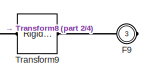
[diagram: wheel_simplified21_RIGID - part 1/4, top right region]
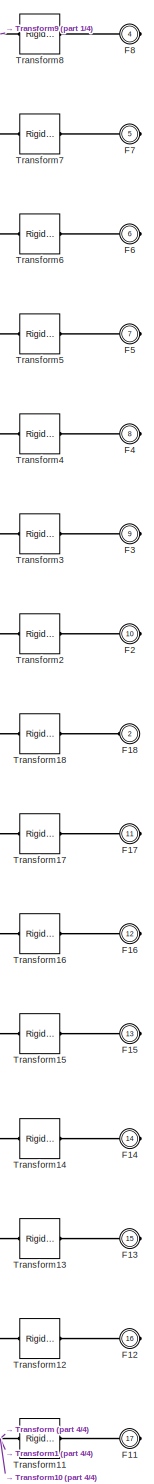
[diagram: wheel_simplified21_RIGID - part 2/4, right side, full height]
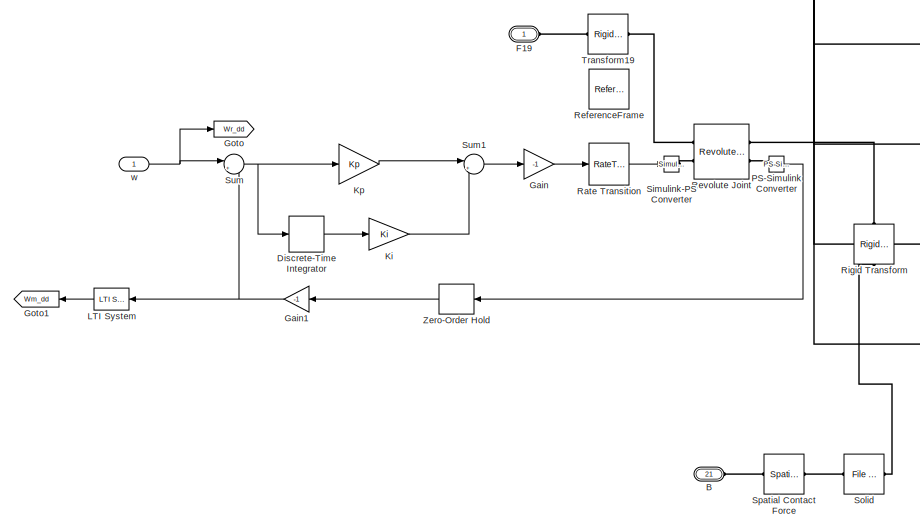
[diagram: wheel_simplified21_RIGID - part 3/4, full width, middle band]
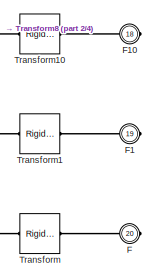
[diagram: wheel_simplified21_RIGID - part 4/4, bottom right region]
BLOCK [SubSystem] wheel_simplified21_RIGID
  Ports = [1, 0, 0, 0, 0, 3, 18]
  RequestExecContextInheritance = off
BLOCK [PMIOPort] wheel_simplified21_RIGID/B
  Port = 21
  Side = Left
BLOCK [DiscreteIntegrator] wheel_simplified21_RIGID/Discrete-Time Integrator
  ICPrevOutput = DiscIntNeverNeededParam
  ICPrevScaledInput = DiscIntNeverNeededParam
  InitialConditionSetting = Auto
  Ports = [1, 1]
  SampleTime = -1
BLOCK [PMIOPort] wheel_simplified21_RIGID/F
  Port = 20
  Side = Right
BLOCK [PMIOPort] wheel_simplified21_RIGID/F1
  Port = 19
  Side = Right
BLOCK [PMIOPort] wheel_simplified21_RIGID/F10
  Port = 18
  Side = Right
BLOCK [PMIOPort] wheel_simplified21_RIGID/F11
  Port = 17
  Side = Right
BLOCK [PMIOPort] wheel_simplified21_RIGID/F12
  Port = 16
  Side = Right
BLOCK [PMIOPort] wheel_simplified21_RIGID/F13
  Port = 15
  Side = Right
BLOCK [PMIOPort] wheel_simplified21_RIGID/F14
  Port = 14
  Side = Right
BLOCK [PMIOPort] wheel_simplified21_RIGID/F15
  Port = 13
  Side = Right
BLOCK [PMIOPort] wheel_simplified21_RIGID/F16
  Port = 12
  Side = Right
BLOCK [PMIOPort] wheel_simplified21_RIGID/F17
  Port = 11
  Side = Right
BLOCK [PMIOPort] wheel_simplified21_RIGID/F18
  Port = 2
  Side = Left
BLOCK [PMIOPort] wheel_simplified21_RIGID/F19
  Side = Left
BLOCK [PMIOPort] wheel_simplified21_RIGID/F2
  Port = 10
  Side = Right
BLOCK [PMIOPort] wheel_simplified21_RIGID/F3
  Port = 9
  Side = Right
BLOCK [PMIOPort] wheel_simplified21_RIGID/F4
  Port = 8
  Side = Right
BLOCK [PMIOPort] wheel_simplified21_RIGID/F5
  Port = 7
  Side = Right
BLOCK [PMIOPort] wheel_simplified21_RIGID/F6
  Port = 6
  Side = Right
BLOCK [PMIOPort] wheel_simplified21_RIGID/F7
  Port = 5
  Side = Right
BLOCK [PMIOPort] wheel_simplified21_RIGID/F8
  Port = 4
  Side = Right
BLOCK [PMIOPort] wheel_simplified21_RIGID/F9
  Port = 3
  Side = Right
BLOCK [Gain] wheel_simplified21_RIGID/Gain
  Gain = -1
BLOCK [Gain] wheel_simplified21_RIGID/Gain1
  Gain = -1
BLOCK [Goto] wheel_simplified21_RIGID/Goto
  GotoTag = Wr_dd
  TagVisibility = global
BLOCK [Goto] wheel_simplified21_RIGID/Goto1
  GotoTag = Wm_dd
  TagVisibility = global
BLOCK [Gain] wheel_simplified21_RIGID/Ki
  Gain = Ki
BLOCK [Gain] wheel_simplified21_RIGID/Kp
  Gain = Kp
BLOCK [Reference] wheel_simplified21_RIGID/LTI System  REF=cstblocks/LTI System
  Ports = [1, 1]
  SourceBlock = cstblocks/LTI System
  SourceProductBaseCode = CT
  SourceType = LTI Block
BLOCK [Reference] wheel_simplified21_RIGID/PS-Simulink Converter  REF=nesl_utility/PS-Simulink
Converter
  Ports = [0, 1, 0, 0, 0, 1]
  SourceBlock = nesl_utility/PS-Simulink\nConverter
  SourceProductBaseCode = PW,SS
  SourceType = PS-Simulink\nConverter
BLOCK [RateTransition] wheel_simplified21_RIGID/Rate Transition
BLOCK [Reference] wheel_simplified21_RIGID/ReferenceFrame  REF=sm_lib/Frames and
Transforms/Reference
Frame
  Commented = on
  Ports = [0, 0, 0, 0, 0, 0, 1]
  SourceBlock = sm_lib/Frames and\nTransforms/Reference\nFrame
  SourceProductBaseCode = MS
  SourceType = Reference\nFrame
BLOCK [Reference] wheel_simplified21_RIGID/Revolute Joint  REF=sm_lib/Joints/Revolute Joint
  Ports = [0, 0, 0, 0, 0, 2, 2]
  SourceBlock = sm_lib/Joints/Revolute Joint
  SourceProductBaseCode = MS
  SourceType = Revolute Joint
BLOCK [Reference] wheel_simplified21_RIGID/Rigid Transform  REF=sm_lib/Frames and
Transforms/Rigid
Transform
  NameLocation = left
  Ports = [0, 0, 0, 0, 0, 1, 1]
  SourceBlock = sm_lib/Frames and\nTransforms/Rigid\nTransform
  SourceProductBaseCode = MS
  SourceType = Rigid\nTransform
BLOCK [Reference] wheel_simplified21_RIGID/Simulink-PS Converter  REF=nesl_utility/Simulink-PS
Converter
  Ports = [1, 0, 0, 0, 0, 0, 1]
  SourceBlock = nesl_utility/Simulink-PS\nConverter
  SourceProductBaseCode = PW,SS
  SourceType = Simulink-PS\nConverter
BLOCK [Reference] wheel_simplified21_RIGID/Solid  REF=sm_lib/Body Elements/File Solid
  Ports = [0, 0, 0, 0, 0, 1, 1]
  SourceBlock = sm_lib/Body Elements/File Solid
  SourceProductBaseCode = MS
  SourceType = File Solid
BLOCK [Reference] wheel_simplified21_RIGID/Spatial Contact Force  REF=sm_lib/Forces and
Torques/Spatial
Contact Force
  Ports = [0, 0, 0, 0, 0, 1, 1]
  SourceBlock = sm_lib/Forces and\nTorques/Spatial\nContact Force
  SourceProductBaseCode = MS
  SourceType = Spatial\nContact Force
BLOCK [Sum] wheel_simplified21_RIGID/Sum
  Inputs = |+-
  Ports = [2, 1]
BLOCK [Sum] wheel_simplified21_RIGID/Sum1
  Inputs = |++
  Ports = [2, 1]
BLOCK [Reference] wheel_simplified21_RIGID/Transform  REF=sm_lib/Frames and
Transforms/Rigid
Transform
  Commented = on
  Ports = [0, 0, 0, 0, 0, 1, 1]
  SourceBlock = sm_lib/Frames and\nTransforms/Rigid\nTransform
  SourceProductBaseCode = MS
  SourceType = Rigid\nTransform
BLOCK [Reference] wheel_simplified21_RIGID/Transform1  REF=sm_lib/Frames and
Transforms/Rigid
Transform
  Commented = on
  Ports = [0, 0, 0, 0, 0, 1, 1]
  SourceBlock = sm_lib/Frames and\nTransforms/Rigid\nTransform
  SourceProductBaseCode = MS
  SourceType = Rigid\nTransform
BLOCK [Reference] wheel_simplified21_RIGID/Transform10  REF=sm_lib/Frames and
Transforms/Rigid
Transform
  Commented = on
  Ports = [0, 0, 0, 0, 0, 1, 1]
  SourceBlock = sm_lib/Frames and\nTransforms/Rigid\nTransform
  SourceProductBaseCode = MS
  SourceType = Rigid\nTransform
BLOCK [Reference] wheel_simplified21_RIGID/Transform11  REF=sm_lib/Frames and
Transforms/Rigid
Transform
  Commented = on
  Ports = [0, 0, 0, 0, 0, 1, 1]
  SourceBlock = sm_lib/Frames and\nTransforms/Rigid\nTransform
  SourceProductBaseCode = MS
  SourceType = Rigid\nTransform
BLOCK [Reference] wheel_simplified21_RIGID/Transform12  REF=sm_lib/Frames and
Transforms/Rigid
Transform
  Commented = on
  Ports = [0, 0, 0, 0, 0, 1, 1]
  SourceBlock = sm_lib/Frames and\nTransforms/Rigid\nTransform
  SourceProductBaseCode = MS
  SourceType = Rigid\nTransform
BLOCK [Reference] wheel_simplified21_RIGID/Transform13  REF=sm_lib/Frames and
Transforms/Rigid
Transform
  Commented = on
  Ports = [0, 0, 0, 0, 0, 1, 1]
  SourceBlock = sm_lib/Frames and\nTransforms/Rigid\nTransform
  SourceProductBaseCode = MS
  SourceType = Rigid\nTransform
BLOCK [Reference] wheel_simplified21_RIGID/Transform14  REF=sm_lib/Frames and
Transforms/Rigid
Transform
  Commented = on
  Ports = [0, 0, 0, 0, 0, 1, 1]
  SourceBlock = sm_lib/Frames and\nTransforms/Rigid\nTransform
  SourceProductBaseCode = MS
  SourceType = Rigid\nTransform
BLOCK [Reference] wheel_simplified21_RIGID/Transform15  REF=sm_lib/Frames and
Transforms/Rigid
Transform
  Commented = on
  Ports = [0, 0, 0, 0, 0, 1, 1]
  SourceBlock = sm_lib/Frames and\nTransforms/Rigid\nTransform
  SourceProductBaseCode = MS
  SourceType = Rigid\nTransform
BLOCK [Reference] wheel_simplified21_RIGID/Transform16  REF=sm_lib/Frames and
Transforms/Rigid
Transform
  Commented = on
  Ports = [0, 0, 0, 0, 0, 1, 1]
  SourceBlock = sm_lib/Frames and\nTransforms/Rigid\nTransform
  SourceProductBaseCode = MS
  SourceType = Rigid\nTransform
BLOCK [Reference] wheel_simplified21_RIGID/Transform17  REF=sm_lib/Frames and
Transforms/Rigid
Transform
  Commented = on
  Ports = [0, 0, 0, 0, 0, 1, 1]
  SourceBlock = sm_lib/Frames and\nTransforms/Rigid\nTransform
  SourceProductBaseCode = MS
  SourceType = Rigid\nTransform
BLOCK [Reference] wheel_simplified21_RIGID/Transform18  REF=sm_lib/Frames and
Transforms/Rigid
Transform
  Commented = on
  Ports = [0, 0, 0, 0, 0, 1, 1]
  SourceBlock = sm_lib/Frames and\nTransforms/Rigid\nTransform
  SourceProductBaseCode = MS
  SourceType = Rigid\nTransform
BLOCK [Reference] wheel_simplified21_RIGID/Transform19  REF=sm_lib/Frames and
Transforms/Rigid
Transform
  Ports = [0, 0, 0, 0, 0, 1, 1]
  SourceBlock = sm_lib/Frames and\nTransforms/Rigid\nTransform
  SourceProductBaseCode = MS
  SourceType = Rigid\nTransform
BLOCK [Reference] wheel_simplified21_RIGID/Transform2  REF=sm_lib/Frames and
Transforms/Rigid
Transform
  Commented = on
  Ports = [0, 0, 0, 0, 0, 1, 1]
  SourceBlock = sm_lib/Frames and\nTransforms/Rigid\nTransform
  SourceProductBaseCode = MS
  SourceType = Rigid\nTransform
BLOCK [Reference] wheel_simplified21_RIGID/Transform3  REF=sm_lib/Frames and
Transforms/Rigid
Transform
  Commented = on
  Ports = [0, 0, 0, 0, 0, 1, 1]
  SourceBlock = sm_lib/Frames and\nTransforms/Rigid\nTransform
  SourceProductBaseCode = MS
  SourceType = Rigid\nTransform
BLOCK [Reference] wheel_simplified21_RIGID/Transform4  REF=sm_lib/Frames and
Transforms/Rigid
Transform
  Commented = on
  Ports = [0, 0, 0, 0, 0, 1, 1]
  SourceBlock = sm_lib/Frames and\nTransforms/Rigid\nTransform
  SourceProductBaseCode = MS
  SourceType = Rigid\nTransform
BLOCK [Reference] wheel_simplified21_RIGID/Transform5  REF=sm_lib/Frames and
Transforms/Rigid
Transform
  Commented = on
  Ports = [0, 0, 0, 0, 0, 1, 1]
  SourceBlock = sm_lib/Frames and\nTransforms/Rigid\nTransform
  SourceProductBaseCode = MS
  SourceType = Rigid\nTransform
BLOCK [Reference] wheel_simplified21_RIGID/Transform6  REF=sm_lib/Frames and
Transforms/Rigid
Transform
  Commented = on
  Ports = [0, 0, 0, 0, 0, 1, 1]
  SourceBlock = sm_lib/Frames and\nTransforms/Rigid\nTransform
  SourceProductBaseCode = MS
  SourceType = Rigid\nTransform
BLOCK [Reference] wheel_simplified21_RIGID/Transform7  REF=sm_lib/Frames and
Transforms/Rigid
Transform
  Commented = on
  Ports = [0, 0, 0, 0, 0, 1, 1]
  SourceBlock = sm_lib/Frames and\nTransforms/Rigid\nTransform
  SourceProductBaseCode = MS
  SourceType = Rigid\nTransform
BLOCK [Reference] wheel_simplified21_RIGID/Transform8  REF=sm_lib/Frames and
Transforms/Rigid
Transform
  Commented = on
  Ports = [0, 0, 0, 0, 0, 1, 1]
  SourceBlock = sm_lib/Frames and\nTransforms/Rigid\nTransform
  SourceProductBaseCode = MS
  SourceType = Rigid\nTransform
BLOCK [Reference] wheel_simplified21_RIGID/Transform9  REF=sm_lib/Frames and
Transforms/Rigid
Transform
  Commented = on
  Ports = [0, 0, 0, 0, 0, 1, 1]
  SourceBlock = sm_lib/Frames and\nTransforms/Rigid\nTransform
  SourceProductBaseCode = MS
  SourceType = Rigid\nTransform
BLOCK [ZeroOrderHold] wheel_simplified21_RIGID/Zero-Order Hold
  SampleTime = T
BLOCK [Inport] wheel_simplified21_RIGID/w
LINE Constant:1 -> Product:2
LINE From1:1 -> Mux:2
LINE From:1 -> Mux:1
LINE Gain1:1 -> Y:1
LINE Gain2:1 -> Vy:1
LINE Gain3:1 -> Vx:1
LINE Gain4:1 -> Zero-Order Hold:1
LINE Gain:1 -> X:1
LINE Mux:1 -> W:1
LINE PS-Simulink Converter1:1 -> Gain2:1
LINE PS-Simulink Converter2:1 -> O:1
LINE PS-Simulink Converter3:1 -> Gain:1
LINE PS-Simulink Converter4:1 -> Gain3:1
LINE PS-Simulink Converter5:1 -> Wo:1
LINE PS-Simulink Converter:1 -> Gain1:1
LINE Product:1 -> wheel_simplified21_RIGID:1
LINE Repeating Sequence:1 -> Gain4:1
LINE Zero-Order Hold:1 -> Product:1
LINE wheel_simplified21_RIGID/Discrete-Time Integrator:1 -> wheel_simplified21_RIGID/Ki:1
NET wheel_simplified21_RIGID/Gain1:1 -> wheel_simplified21_RIGID/LTI System:1, wheel_simplified21_RIGID/Sum:2
LINE wheel_simplified21_RIGID/Gain:1 -> wheel_simplified21_RIGID/Rate Transition:1
LINE wheel_simplified21_RIGID/Ki:1 -> wheel_simplified21_RIGID/Sum1:2
LINE wheel_simplified21_RIGID/Kp:1 -> wheel_simplified21_RIGID/Sum1:1
LINE wheel_simplified21_RIGID/LTI System:1 -> wheel_simplified21_RIGID/Goto1:1
LINE wheel_simplified21_RIGID/PS-Simulink Converter:1 -> wheel_simplified21_RIGID/Zero-Order Hold:1
LINE wheel_simplified21_RIGID/Rate Transition:1 -> wheel_simplified21_RIGID/Simulink-PS Converter:1
LINE wheel_simplified21_RIGID/Sum1:1 -> wheel_simplified21_RIGID/Gain:1
NET wheel_simplified21_RIGID/Sum:1 -> wheel_simplified21_RIGID/Discrete-Time Integrator:1, wheel_simplified21_RIGID/Kp:1
LINE wheel_simplified21_RIGID/Zero-Order Hold:1 -> wheel_simplified21_RIGID/Gain1:1
NET wheel_simplified21_RIGID/w:1 -> wheel_simplified21_RIGID/Goto:1, wheel_simplified21_RIGID/Sum:1
PLINE Cartesian Joint:LConn1 -- Revolute Joint:RConn1
PLINE Cartesian Joint:RConn1 -- wheel_simplified21_RIGID:LConn1
PLINE Cartesian Joint:RConn2 -- PS-Simulink Converter:LConn1
PLINE Cartesian Joint:RConn3 -- PS-Simulink Converter1:LConn1
PLINE Cartesian Joint:RConn4 -- PS-Simulink Converter3:LConn1
PLINE Cartesian Joint:RConn5 -- PS-Simulink Converter4:LConn1
PLINE Cylindrical10:LConn1 -- wheel_simplified21_RIGID:RConn17
PLINE Cylindrical10:RConn1 -- Roller10_RIGID:LConn1
PLINE Cylindrical11:LConn1 -- wheel_simplified21_RIGID:RConn8
PLINE Cylindrical11:RConn1 -- Roller11_RIGID:LConn1
PLINE Cylindrical12:LConn1 -- wheel_simplified21_RIGID:RConn7
PLINE Cylindrical12:RConn1 -- Roller12_RIGID:LConn1
PLINE Cylindrical13:LConn1 -- wheel_simplified21_RIGID:RConn6
PLINE Cylindrical13:RConn1 -- Roller13_RIGID:LConn1
PLINE Cylindrical14:LConn1 -- wheel_simplified21_RIGID:RConn5
PLINE Cylindrical14:RConn1 -- Roller14_RIGID:LConn1
PLINE Cylindrical15:LConn1 -- wheel_simplified21_RIGID:RConn4
PLINE Cylindrical15:RConn1 -- Roller15_RIGID:LConn1
PLINE Cylindrical16:LConn1 -- wheel_simplified21_RIGID:RConn3
PLINE Cylindrical16:RConn1 -- Roller16_RIGID:LConn1
PLINE Cylindrical17:LConn1 -- wheel_simplified21_RIGID:RConn2
PLINE Cylindrical17:RConn1 -- Roller17_RIGID:LConn1
PLINE Cylindrical18:LConn1 -- wheel_simplified21_RIGID:RConn1
PLINE Cylindrical18:RConn1 -- Roller18_RIGID:LConn1
PLINE Cylindrical1:LConn1 -- wheel_simplified21_RIGID:RConn16
PLINE Cylindrical1:RConn1 -- Roller2_RIGID:LConn1
PLINE Cylindrical2:LConn1 -- wheel_simplified21_RIGID:RConn15
PLINE Cylindrical2:RConn1 -- Roller3_RIGID:LConn1
PLINE Cylindrical4:LConn1 -- wheel_simplified21_RIGID:RConn14
PLINE Cylindrical4:RConn1 -- Roller4_RIGID:LConn1
PLINE Cylindrical5:LConn1 -- wheel_simplified21_RIGID:RConn13
PLINE Cylindrical5:RConn1 -- Roller5_RIGID:LConn1
PLINE Cylindrical6:LConn1 -- wheel_simplified21_RIGID:RConn12
PLINE Cylindrical6:RConn1 -- Roller6_RIGID:LConn1
PLINE Cylindrical7:LConn1 -- wheel_simplified21_RIGID:RConn11
PLINE Cylindrical7:RConn1 -- Roller7_RIGID:LConn1
PLINE Cylindrical8:LConn1 -- wheel_simplified21_RIGID:RConn10
PLINE Cylindrical8:RConn1 -- Roller8_RIGID:LConn1
PLINE Cylindrical9:LConn1 -- wheel_simplified21_RIGID:RConn9
PLINE Cylindrical9:RConn1 -- Roller9_RIGID:LConn1
PNET net1: Infinite Plane:LConn1 -- MechanismConfiguration:RConn1 -- Solver Configuration:RConn1 -- Transform:LConn1 -- World:RConn1
PLINE Infinite Plane:RConn1 -- wheel_simplified21_RIGID:LConn3
PLINE PS-Simulink Converter2:LConn1 -- Revolute Joint:RConn2
PLINE PS-Simulink Converter5:LConn1 -- Revolute Joint:RConn3
PLINE Revolute Joint1:LConn1 -- wheel_simplified21_RIGID:RConn18
PLINE Revolute Joint1:RConn1 -- Roller1_RIGID:LConn1
PLINE Revolute Joint:LConn1 -- Transform:RConn1
PLINE Roller10_RIGID/B:RConn1 -- Roller10_RIGID/RollerTire1_RIGID:LConn2
PLINE Roller10_RIGID/F:RConn1 -- Roller10_RIGID/Transform:RConn1
PNET net2: Roller10_RIGID/ReferenceFrame:RConn1 -- Roller10_RIGID/Transform1:LConn1 -- Roller10_RIGID/Transform2:LConn1 -- Roller10_RIGID/Transform:LConn1
PNET net3: Roller10_RIGID/Roller1_RIGID/F:RConn1 -- Roller10_RIGID/Roller1_RIGID/ReferenceFrame:RConn1 -- Roller10_RIGID/Roller1_RIGID/Solid:RConn1
PLINE Roller10_RIGID/Roller1_RIGID:LConn1 -- Roller10_RIGID/Transform1:RConn1
PLINE Roller10_RIGID/RollerTire1_RIGID/B:RConn1 -- Roller10_RIGID/RollerTire1_RIGID/Spatial Contact Force:LConn1
PNET net4: Roller10_RIGID/RollerTire1_RIGID/F:RConn1 -- Roller10_RIGID/RollerTire1_RIGID/ReferenceFrame:RConn1 -- Roller10_RIGID/RollerTire1_RIGID/Solid:RConn1
PLINE Roller10_RIGID/RollerTire1_RIGID/Solid:LConn1 -- Roller10_RIGID/RollerTire1_RIGID/Spatial Contact Force:RConn1
PLINE Roller10_RIGID/RollerTire1_RIGID:LConn1 -- Roller10_RIGID/Transform2:RConn1
PNET net5: Roller10_RIGID:LConn2 -- Roller11_RIGID:LConn2 -- Roller12_RIGID:LConn2 -- Roller13_RIGID:LConn2 -- Roller14_RIGID:LConn2 -- Roller15_RIGID:LConn2 -- Roller16_RIGID:LConn2 -- Roller17_RIGID:LConn2 -- Roller18_RIGID:LConn2 -- Roller1_RIGID:LConn2 -- Roller2_RIGID:LConn2 -- Roller3_RIGID:LConn2 -- Roller4_RIGID:LConn2 -- Roller5_RIGID:LConn2 -- Roller6_RIGID:LConn2 -- Roller7_RIGID:LConn2 -- Roller8_RIGID:LConn2 -- Roller9_RIGID:LConn2
PLINE Roller11_RIGID/B:RConn1 -- Roller11_RIGID/RollerTire1_RIGID:LConn2
PLINE Roller11_RIGID/F:RConn1 -- Roller11_RIGID/Transform:RConn1
PNET net6: Roller11_RIGID/ReferenceFrame:RConn1 -- Roller11_RIGID/Transform1:LConn1 -- Roller11_RIGID/Transform2:LConn1 -- Roller11_RIGID/Transform:LConn1
PNET net7: Roller11_RIGID/Roller1_RIGID/F:RConn1 -- Roller11_RIGID/Roller1_RIGID/ReferenceFrame:RConn1 -- Roller11_RIGID/Roller1_RIGID/Solid:RConn1
PLINE Roller11_RIGID/Roller1_RIGID:LConn1 -- Roller11_RIGID/Transform1:RConn1
PLINE Roller11_RIGID/RollerTire1_RIGID/B:RConn1 -- Roller11_RIGID/RollerTire1_RIGID/Spatial Contact Force:LConn1
PNET net8: Roller11_RIGID/RollerTire1_RIGID/F:RConn1 -- Roller11_RIGID/RollerTire1_RIGID/ReferenceFrame:RConn1 -- Roller11_RIGID/RollerTire1_RIGID/Solid:RConn1
PLINE Roller11_RIGID/RollerTire1_RIGID/Solid:LConn1 -- Roller11_RIGID/RollerTire1_RIGID/Spatial Contact Force:RConn1
PLINE Roller11_RIGID/RollerTire1_RIGID:LConn1 -- Roller11_RIGID/Transform2:RConn1
PLINE Roller12_RIGID/B:RConn1 -- Roller12_RIGID/RollerTire1_RIGID:LConn2
PLINE Roller12_RIGID/F:RConn1 -- Roller12_RIGID/Transform:RConn1
PNET net9: Roller12_RIGID/ReferenceFrame:RConn1 -- Roller12_RIGID/Transform1:LConn1 -- Roller12_RIGID/Transform2:LConn1 -- Roller12_RIGID/Transform:LConn1
PNET net10: Roller12_RIGID/Roller1_RIGID/F:RConn1 -- Roller12_RIGID/Roller1_RIGID/ReferenceFrame:RConn1 -- Roller12_RIGID/Roller1_RIGID/Solid:RConn1
PLINE Roller12_RIGID/Roller1_RIGID:LConn1 -- Roller12_RIGID/Transform1:RConn1
PLINE Roller12_RIGID/RollerTire1_RIGID/B:RConn1 -- Roller12_RIGID/RollerTire1_RIGID/Spatial Contact Force:LConn1
PNET net11: Roller12_RIGID/RollerTire1_RIGID/F:RConn1 -- Roller12_RIGID/RollerTire1_RIGID/ReferenceFrame:RConn1 -- Roller12_RIGID/RollerTire1_RIGID/Solid:RConn1
PLINE Roller12_RIGID/RollerTire1_RIGID/Solid:LConn1 -- Roller12_RIGID/RollerTire1_RIGID/Spatial Contact Force:RConn1
PLINE Roller12_RIGID/RollerTire1_RIGID:LConn1 -- Roller12_RIGID/Transform2:RConn1
PLINE Roller13_RIGID/B:RConn1 -- Roller13_RIGID/RollerTire1_RIGID:LConn2
PLINE Roller13_RIGID/F:RConn1 -- Roller13_RIGID/Transform:RConn1
PNET net12: Roller13_RIGID/ReferenceFrame:RConn1 -- Roller13_RIGID/Transform1:LConn1 -- Roller13_RIGID/Transform2:LConn1 -- Roller13_RIGID/Transform:LConn1
PNET net13: Roller13_RIGID/Roller1_RIGID/F:RConn1 -- Roller13_RIGID/Roller1_RIGID/ReferenceFrame:RConn1 -- Roller13_RIGID/Roller1_RIGID/Solid:RConn1
PLINE Roller13_RIGID/Roller1_RIGID:LConn1 -- Roller13_RIGID/Transform1:RConn1
PLINE Roller13_RIGID/RollerTire1_RIGID/B:RConn1 -- Roller13_RIGID/RollerTire1_RIGID/Spatial Contact Force:LConn1
PNET net14: Roller13_RIGID/RollerTire1_RIGID/F:RConn1 -- Roller13_RIGID/RollerTire1_RIGID/ReferenceFrame:RConn1 -- Roller13_RIGID/RollerTire1_RIGID/Solid:RConn1
PLINE Roller13_RIGID/RollerTire1_RIGID/Solid:LConn1 -- Roller13_RIGID/RollerTire1_RIGID/Spatial Contact Force:RConn1
PLINE Roller13_RIGID/RollerTire1_RIGID:LConn1 -- Roller13_RIGID/Transform2:RConn1
PLINE Roller14_RIGID/B:RConn1 -- Roller14_RIGID/RollerTire1_RIGID:LConn2
PLINE Roller14_RIGID/F:RConn1 -- Roller14_RIGID/Transform:RConn1
PNET net15: Roller14_RIGID/ReferenceFrame:RConn1 -- Roller14_RIGID/Transform1:LConn1 -- Roller14_RIGID/Transform2:LConn1 -- Roller14_RIGID/Transform:LConn1
PNET net16: Roller14_RIGID/Roller1_RIGID/F:RConn1 -- Roller14_RIGID/Roller1_RIGID/ReferenceFrame:RConn1 -- Roller14_RIGID/Roller1_RIGID/Solid:RConn1
PLINE Roller14_RIGID/Roller1_RIGID:LConn1 -- Roller14_RIGID/Transform1:RConn1
PLINE Roller14_RIGID/RollerTire1_RIGID/B:RConn1 -- Roller14_RIGID/RollerTire1_RIGID/Spatial Contact Force:LConn1
PNET net17: Roller14_RIGID/RollerTire1_RIGID/F:RConn1 -- Roller14_RIGID/RollerTire1_RIGID/ReferenceFrame:RConn1 -- Roller14_RIGID/RollerTire1_RIGID/Solid:RConn1
PLINE Roller14_RIGID/RollerTire1_RIGID/Solid:LConn1 -- Roller14_RIGID/RollerTire1_RIGID/Spatial Contact Force:RConn1
PLINE Roller14_RIGID/RollerTire1_RIGID:LConn1 -- Roller14_RIGID/Transform2:RConn1
PLINE Roller15_RIGID/B:RConn1 -- Roller15_RIGID/RollerTire1_RIGID:LConn2
PLINE Roller15_RIGID/F:RConn1 -- Roller15_RIGID/Transform:RConn1
PNET net18: Roller15_RIGID/ReferenceFrame:RConn1 -- Roller15_RIGID/Transform1:LConn1 -- Roller15_RIGID/Transform2:LConn1 -- Roller15_RIGID/Transform:LConn1
PNET net19: Roller15_RIGID/Roller1_RIGID/F:RConn1 -- Roller15_RIGID/Roller1_RIGID/ReferenceFrame:RConn1 -- Roller15_RIGID/Roller1_RIGID/Solid:RConn1
PLINE Roller15_RIGID/Roller1_RIGID:LConn1 -- Roller15_RIGID/Transform1:RConn1
PLINE Roller15_RIGID/RollerTire1_RIGID/B:RConn1 -- Roller15_RIGID/RollerTire1_RIGID/Spatial Contact Force:LConn1
PNET net20: Roller15_RIGID/RollerTire1_RIGID/F:RConn1 -- Roller15_RIGID/RollerTire1_RIGID/ReferenceFrame:RConn1 -- Roller15_RIGID/RollerTire1_RIGID/Solid:RConn1
PLINE Roller15_RIGID/RollerTire1_RIGID/Solid:LConn1 -- Roller15_RIGID/RollerTire1_RIGID/Spatial Contact Force:RConn1
PLINE Roller15_RIGID/RollerTire1_RIGID:LConn1 -- Roller15_RIGID/Transform2:RConn1
PLINE Roller16_RIGID/B:RConn1 -- Roller16_RIGID/RollerTire1_RIGID:LConn2
PLINE Roller16_RIGID/F:RConn1 -- Roller16_RIGID/Transform:RConn1
PNET net21: Roller16_RIGID/ReferenceFrame:RConn1 -- Roller16_RIGID/Transform1:LConn1 -- Roller16_RIGID/Transform2:LConn1 -- Roller16_RIGID/Transform:LConn1
PNET net22: Roller16_RIGID/Roller1_RIGID/F:RConn1 -- Roller16_RIGID/Roller1_RIGID/ReferenceFrame:RConn1 -- Roller16_RIGID/Roller1_RIGID/Solid:RConn1
PLINE Roller16_RIGID/Roller1_RIGID:LConn1 -- Roller16_RIGID/Transform1:RConn1
PLINE Roller16_RIGID/RollerTire1_RIGID/B:RConn1 -- Roller16_RIGID/RollerTire1_RIGID/Spatial Contact Force:LConn1
PNET net23: Roller16_RIGID/RollerTire1_RIGID/F:RConn1 -- Roller16_RIGID/RollerTire1_RIGID/ReferenceFrame:RConn1 -- Roller16_RIGID/RollerTire1_RIGID/Solid:RConn1
PLINE Roller16_RIGID/RollerTire1_RIGID/Solid:LConn1 -- Roller16_RIGID/RollerTire1_RIGID/Spatial Contact Force:RConn1
PLINE Roller16_RIGID/RollerTire1_RIGID:LConn1 -- Roller16_RIGID/Transform2:RConn1
PLINE Roller17_RIGID/B:RConn1 -- Roller17_RIGID/RollerTire1_RIGID:LConn2
PLINE Roller17_RIGID/F:RConn1 -- Roller17_RIGID/Transform:RConn1
PNET net24: Roller17_RIGID/ReferenceFrame:RConn1 -- Roller17_RIGID/Transform1:LConn1 -- Roller17_RIGID/Transform2:LConn1 -- Roller17_RIGID/Transform:LConn1
PNET net25: Roller17_RIGID/Roller1_RIGID/F:RConn1 -- Roller17_RIGID/Roller1_RIGID/ReferenceFrame:RConn1 -- Roller17_RIGID/Roller1_RIGID/Solid:RConn1
PLINE Roller17_RIGID/Roller1_RIGID:LConn1 -- Roller17_RIGID/Transform1:RConn1
PLINE Roller17_RIGID/RollerTire1_RIGID/B:RConn1 -- Roller17_RIGID/RollerTire1_RIGID/Spatial Contact Force:LConn1
PNET net26: Roller17_RIGID/RollerTire1_RIGID/F:RConn1 -- Roller17_RIGID/RollerTire1_RIGID/ReferenceFrame:RConn1 -- Roller17_RIGID/RollerTire1_RIGID/Solid:RConn1
PLINE Roller17_RIGID/RollerTire1_RIGID/Solid:LConn1 -- Roller17_RIGID/RollerTire1_RIGID/Spatial Contact Force:RConn1
PLINE Roller17_RIGID/RollerTire1_RIGID:LConn1 -- Roller17_RIGID/Transform2:RConn1
PLINE Roller18_RIGID/B:RConn1 -- Roller18_RIGID/RollerTire1_RIGID:LConn2
PLINE Roller18_RIGID/F:RConn1 -- Roller18_RIGID/Transform:RConn1
PNET net27: Roller18_RIGID/ReferenceFrame:RConn1 -- Roller18_RIGID/Transform1:LConn1 -- Roller18_RIGID/Transform2:LConn1 -- Roller18_RIGID/Transform:LConn1
PNET net28: Roller18_RIGID/Roller1_RIGID/F:RConn1 -- Roller18_RIGID/Roller1_RIGID/ReferenceFrame:RConn1 -- Roller18_RIGID/Roller1_RIGID/Solid:RConn1
PLINE Roller18_RIGID/Roller1_RIGID:LConn1 -- Roller18_RIGID/Transform1:RConn1
PLINE Roller18_RIGID/RollerTire1_RIGID/B:RConn1 -- Roller18_RIGID/RollerTire1_RIGID/Spatial Contact Force:LConn1
PNET net29: Roller18_RIGID/RollerTire1_RIGID/F:RConn1 -- Roller18_RIGID/RollerTire1_RIGID/ReferenceFrame:RConn1 -- Roller18_RIGID/RollerTire1_RIGID/Solid:RConn1
PLINE Roller18_RIGID/RollerTire1_RIGID/Solid:LConn1 -- Roller18_RIGID/RollerTire1_RIGID/Spatial Contact Force:RConn1
PLINE Roller18_RIGID/RollerTire1_RIGID:LConn1 -- Roller18_RIGID/Transform2:RConn1
PLINE Roller1_RIGID/B:RConn1 -- Roller1_RIGID/RollerTire1_RIGID:LConn2
PLINE Roller1_RIGID/F:RConn1 -- Roller1_RIGID/Transform:RConn1
PNET net30: Roller1_RIGID/ReferenceFrame:RConn1 -- Roller1_RIGID/Transform1:LConn1 -- Roller1_RIGID/Transform2:LConn1 -- Roller1_RIGID/Transform:LConn1
PNET net31: Roller1_RIGID/Roller1_RIGID/F:RConn1 -- Roller1_RIGID/Roller1_RIGID/ReferenceFrame:RConn1 -- Roller1_RIGID/Roller1_RIGID/Solid:RConn1
PLINE Roller1_RIGID/Roller1_RIGID:LConn1 -- Roller1_RIGID/Transform1:RConn1
PLINE Roller1_RIGID/RollerTire1_RIGID/B:RConn1 -- Roller1_RIGID/RollerTire1_RIGID/Spatial Contact Force:LConn1
PNET net32: Roller1_RIGID/RollerTire1_RIGID/F:RConn1 -- Roller1_RIGID/RollerTire1_RIGID/ReferenceFrame:RConn1 -- Roller1_RIGID/RollerTire1_RIGID/Solid:RConn1
PLINE Roller1_RIGID/RollerTire1_RIGID/Solid:LConn1 -- Roller1_RIGID/RollerTire1_RIGID/Spatial Contact Force:RConn1
PLINE Roller1_RIGID/RollerTire1_RIGID:LConn1 -- Roller1_RIGID/Transform2:RConn1
PLINE Roller2_RIGID/B:RConn1 -- Roller2_RIGID/RollerTire1_RIGID:LConn2
PLINE Roller2_RIGID/F:RConn1 -- Roller2_RIGID/Transform:RConn1
PNET net33: Roller2_RIGID/ReferenceFrame:RConn1 -- Roller2_RIGID/Transform1:LConn1 -- Roller2_RIGID/Transform2:LConn1 -- Roller2_RIGID/Transform:LConn1
PNET net34: Roller2_RIGID/Roller1_RIGID/F:RConn1 -- Roller2_RIGID/Roller1_RIGID/ReferenceFrame:RConn1 -- Roller2_RIGID/Roller1_RIGID/Solid:RConn1
PLINE Roller2_RIGID/Roller1_RIGID:LConn1 -- Roller2_RIGID/Transform1:RConn1
PLINE Roller2_RIGID/RollerTire1_RIGID/B:RConn1 -- Roller2_RIGID/RollerTire1_RIGID/Spatial Contact Force:LConn1
PNET net35: Roller2_RIGID/RollerTire1_RIGID/F:RConn1 -- Roller2_RIGID/RollerTire1_RIGID/ReferenceFrame:RConn1 -- Roller2_RIGID/RollerTire1_RIGID/Solid:RConn1
PLINE Roller2_RIGID/RollerTire1_RIGID/Solid:LConn1 -- Roller2_RIGID/RollerTire1_RIGID/Spatial Contact Force:RConn1
PLINE Roller2_RIGID/RollerTire1_RIGID:LConn1 -- Roller2_RIGID/Transform2:RConn1
PLINE Roller3_RIGID/B:RConn1 -- Roller3_RIGID/RollerTire1_RIGID:LConn2
PLINE Roller3_RIGID/F:RConn1 -- Roller3_RIGID/Transform:RConn1
PNET net36: Roller3_RIGID/ReferenceFrame:RConn1 -- Roller3_RIGID/Transform1:LConn1 -- Roller3_RIGID/Transform2:LConn1 -- Roller3_RIGID/Transform:LConn1
PNET net37: Roller3_RIGID/Roller1_RIGID/F:RConn1 -- Roller3_RIGID/Roller1_RIGID/ReferenceFrame:RConn1 -- Roller3_RIGID/Roller1_RIGID/Solid:RConn1
PLINE Roller3_RIGID/Roller1_RIGID:LConn1 -- Roller3_RIGID/Transform1:RConn1
PLINE Roller3_RIGID/RollerTire1_RIGID/B:RConn1 -- Roller3_RIGID/RollerTire1_RIGID/Spatial Contact Force:LConn1
PNET net38: Roller3_RIGID/RollerTire1_RIGID/F:RConn1 -- Roller3_RIGID/RollerTire1_RIGID/ReferenceFrame:RConn1 -- Roller3_RIGID/RollerTire1_RIGID/Solid:RConn1
PLINE Roller3_RIGID/RollerTire1_RIGID/Solid:LConn1 -- Roller3_RIGID/RollerTire1_RIGID/Spatial Contact Force:RConn1
PLINE Roller3_RIGID/RollerTire1_RIGID:LConn1 -- Roller3_RIGID/Transform2:RConn1
PLINE Roller4_RIGID/B:RConn1 -- Roller4_RIGID/RollerTire1_RIGID:LConn2
PLINE Roller4_RIGID/F:RConn1 -- Roller4_RIGID/Transform:RConn1
PNET net39: Roller4_RIGID/ReferenceFrame:RConn1 -- Roller4_RIGID/Transform1:LConn1 -- Roller4_RIGID/Transform2:LConn1 -- Roller4_RIGID/Transform:LConn1
PNET net40: Roller4_RIGID/Roller1_RIGID/F:RConn1 -- Roller4_RIGID/Roller1_RIGID/ReferenceFrame:RConn1 -- Roller4_RIGID/Roller1_RIGID/Solid:RConn1
PLINE Roller4_RIGID/Roller1_RIGID:LConn1 -- Roller4_RIGID/Transform1:RConn1
PLINE Roller4_RIGID/RollerTire1_RIGID/B:RConn1 -- Roller4_RIGID/RollerTire1_RIGID/Spatial Contact Force:LConn1
PNET net41: Roller4_RIGID/RollerTire1_RIGID/F:RConn1 -- Roller4_RIGID/RollerTire1_RIGID/ReferenceFrame:RConn1 -- Roller4_RIGID/RollerTire1_RIGID/Solid:RConn1
PLINE Roller4_RIGID/RollerTire1_RIGID/Solid:LConn1 -- Roller4_RIGID/RollerTire1_RIGID/Spatial Contact Force:RConn1
PLINE Roller4_RIGID/RollerTire1_RIGID:LConn1 -- Roller4_RIGID/Transform2:RConn1
PLINE Roller5_RIGID/B:RConn1 -- Roller5_RIGID/RollerTire1_RIGID:LConn2
PLINE Roller5_RIGID/F:RConn1 -- Roller5_RIGID/Transform:RConn1
PNET net42: Roller5_RIGID/ReferenceFrame:RConn1 -- Roller5_RIGID/Transform1:LConn1 -- Roller5_RIGID/Transform2:LConn1 -- Roller5_RIGID/Transform:LConn1
PNET net43: Roller5_RIGID/Roller1_RIGID/F:RConn1 -- Roller5_RIGID/Roller1_RIGID/ReferenceFrame:RConn1 -- Roller5_RIGID/Roller1_RIGID/Solid:RConn1
PLINE Roller5_RIGID/Roller1_RIGID:LConn1 -- Roller5_RIGID/Transform1:RConn1
PLINE Roller5_RIGID/RollerTire1_RIGID/B:RConn1 -- Roller5_RIGID/RollerTire1_RIGID/Spatial Contact Force:LConn1
PNET net44: Roller5_RIGID/RollerTire1_RIGID/F:RConn1 -- Roller5_RIGID/RollerTire1_RIGID/ReferenceFrame:RConn1 -- Roller5_RIGID/RollerTire1_RIGID/Solid:RConn1
PLINE Roller5_RIGID/RollerTire1_RIGID/Solid:LConn1 -- Roller5_RIGID/RollerTire1_RIGID/Spatial Contact Force:RConn1
PLINE Roller5_RIGID/RollerTire1_RIGID:LConn1 -- Roller5_RIGID/Transform2:RConn1
PLINE Roller6_RIGID/B:RConn1 -- Roller6_RIGID/RollerTire1_RIGID:LConn2
PLINE Roller6_RIGID/F:RConn1 -- Roller6_RIGID/Transform:RConn1
PNET net45: Roller6_RIGID/ReferenceFrame:RConn1 -- Roller6_RIGID/Transform1:LConn1 -- Roller6_RIGID/Transform2:LConn1 -- Roller6_RIGID/Transform:LConn1
PNET net46: Roller6_RIGID/Roller1_RIGID/F:RConn1 -- Roller6_RIGID/Roller1_RIGID/ReferenceFrame:RConn1 -- Roller6_RIGID/Roller1_RIGID/Solid:RConn1
PLINE Roller6_RIGID/Roller1_RIGID:LConn1 -- Roller6_RIGID/Transform1:RConn1
PLINE Roller6_RIGID/RollerTire1_RIGID/B:RConn1 -- Roller6_RIGID/RollerTire1_RIGID/Spatial Contact Force:LConn1
PNET net47: Roller6_RIGID/RollerTire1_RIGID/F:RConn1 -- Roller6_RIGID/RollerTire1_RIGID/ReferenceFrame:RConn1 -- Roller6_RIGID/RollerTire1_RIGID/Solid:RConn1
PLINE Roller6_RIGID/RollerTire1_RIGID/Solid:LConn1 -- Roller6_RIGID/RollerTire1_RIGID/Spatial Contact Force:RConn1
PLINE Roller6_RIGID/RollerTire1_RIGID:LConn1 -- Roller6_RIGID/Transform2:RConn1
PLINE Roller7_RIGID/B:RConn1 -- Roller7_RIGID/RollerTire1_RIGID:LConn2
PLINE Roller7_RIGID/F:RConn1 -- Roller7_RIGID/Transform:RConn1
PNET net48: Roller7_RIGID/ReferenceFrame:RConn1 -- Roller7_RIGID/Transform1:LConn1 -- Roller7_RIGID/Transform2:LConn1 -- Roller7_RIGID/Transform:LConn1
PNET net49: Roller7_RIGID/Roller1_RIGID/F:RConn1 -- Roller7_RIGID/Roller1_RIGID/ReferenceFrame:RConn1 -- Roller7_RIGID/Roller1_RIGID/Solid:RConn1
PLINE Roller7_RIGID/Roller1_RIGID:LConn1 -- Roller7_RIGID/Transform1:RConn1
PLINE Roller7_RIGID/RollerTire1_RIGID/B:RConn1 -- Roller7_RIGID/RollerTire1_RIGID/Spatial Contact Force:LConn1
PNET net50: Roller7_RIGID/RollerTire1_RIGID/F:RConn1 -- Roller7_RIGID/RollerTire1_RIGID/ReferenceFrame:RConn1 -- Roller7_RIGID/RollerTire1_RIGID/Solid:RConn1
PLINE Roller7_RIGID/RollerTire1_RIGID/Solid:LConn1 -- Roller7_RIGID/RollerTire1_RIGID/Spatial Contact Force:RConn1
PLINE Roller7_RIGID/RollerTire1_RIGID:LConn1 -- Roller7_RIGID/Transform2:RConn1
PLINE Roller8_RIGID/B:RConn1 -- Roller8_RIGID/RollerTire1_RIGID:LConn2
PLINE Roller8_RIGID/F:RConn1 -- Roller8_RIGID/Transform:RConn1
PNET net51: Roller8_RIGID/ReferenceFrame:RConn1 -- Roller8_RIGID/Transform1:LConn1 -- Roller8_RIGID/Transform2:LConn1 -- Roller8_RIGID/Transform:LConn1
PNET net52: Roller8_RIGID/Roller1_RIGID/F:RConn1 -- Roller8_RIGID/Roller1_RIGID/ReferenceFrame:RConn1 -- Roller8_RIGID/Roller1_RIGID/Solid:RConn1
PLINE Roller8_RIGID/Roller1_RIGID:LConn1 -- Roller8_RIGID/Transform1:RConn1
PLINE Roller8_RIGID/RollerTire1_RIGID/B:RConn1 -- Roller8_RIGID/RollerTire1_RIGID/Spatial Contact Force:LConn1
PNET net53: Roller8_RIGID/RollerTire1_RIGID/F:RConn1 -- Roller8_RIGID/RollerTire1_RIGID/ReferenceFrame:RConn1 -- Roller8_RIGID/RollerTire1_RIGID/Solid:RConn1
PLINE Roller8_RIGID/RollerTire1_RIGID/Solid:LConn1 -- Roller8_RIGID/RollerTire1_RIGID/Spatial Contact Force:RConn1
PLINE Roller8_RIGID/RollerTire1_RIGID:LConn1 -- Roller8_RIGID/Transform2:RConn1
PLINE Roller9_RIGID/B:RConn1 -- Roller9_RIGID/RollerTire1_RIGID:LConn2
PLINE Roller9_RIGID/F:RConn1 -- Roller9_RIGID/Transform:RConn1
PNET net54: Roller9_RIGID/ReferenceFrame:RConn1 -- Roller9_RIGID/Transform1:LConn1 -- Roller9_RIGID/Transform2:LConn1 -- Roller9_RIGID/Transform:LConn1
PNET net55: Roller9_RIGID/Roller1_RIGID/F:RConn1 -- Roller9_RIGID/Roller1_RIGID/ReferenceFrame:RConn1 -- Roller9_RIGID/Roller1_RIGID/Solid:RConn1
PLINE Roller9_RIGID/Roller1_RIGID:LConn1 -- Roller9_RIGID/Transform1:RConn1
PLINE Roller9_RIGID/RollerTire1_RIGID/B:RConn1 -- Roller9_RIGID/RollerTire1_RIGID/Spatial Contact Force:LConn1
PNET net56: Roller9_RIGID/RollerTire1_RIGID/F:RConn1 -- Roller9_RIGID/RollerTire1_RIGID/ReferenceFrame:RConn1 -- Roller9_RIGID/RollerTire1_RIGID/Solid:RConn1
PLINE Roller9_RIGID/RollerTire1_RIGID/Solid:LConn1 -- Roller9_RIGID/RollerTire1_RIGID/Spatial Contact Force:RConn1
PLINE Roller9_RIGID/RollerTire1_RIGID:LConn1 -- Roller9_RIGID/Transform2:RConn1
PLINE gear_z60_26106000_simplified1_RIGID/F:RConn1 -- gear_z60_26106000_simplified1_RIGID/Transform:RConn1
PNET net57: gear_z60_26106000_simplified1_RIGID/ReferenceFrame:RConn1 -- gear_z60_26106000_simplified1_RIGID/Solid:RConn1 -- gear_z60_26106000_simplified1_RIGID/Transform:LConn1
PLINE gear_z60_26106000_simplified1_RIGID:LConn1 -- wheel_simplified21_RIGID:LConn2
PLINE wheel_simplified21_RIGID/B:RConn1 -- wheel_simplified21_RIGID/Spatial Contact Force:LConn1
PLINE wheel_simplified21_RIGID/F10:RConn1 -- wheel_simplified21_RIGID/Transform10:RConn1
PLINE wheel_simplified21_RIGID/F11:RConn1 -- wheel_simplified21_RIGID/Transform11:RConn1
PLINE wheel_simplified21_RIGID/F12:RConn1 -- wheel_simplified21_RIGID/Transform12:RConn1
PLINE wheel_simplified21_RIGID/F13:RConn1 -- wheel_simplified21_RIGID/Transform13:RConn1
PLINE wheel_simplified21_RIGID/F14:RConn1 -- wheel_simplified21_RIGID/Transform14:RConn1
PLINE wheel_simplified21_RIGID/F15:RConn1 -- wheel_simplified21_RIGID/Transform15:RConn1
PLINE wheel_simplified21_RIGID/F16:RConn1 -- wheel_simplified21_RIGID/Transform16:RConn1
PLINE wheel_simplified21_RIGID/F17:RConn1 -- wheel_simplified21_RIGID/Transform17:RConn1
PLINE wheel_simplified21_RIGID/F18:RConn1 -- wheel_simplified21_RIGID/Transform18:RConn1
PLINE wheel_simplified21_RIGID/F19:RConn1 -- wheel_simplified21_RIGID/Transform19:LConn1
PLINE wheel_simplified21_RIGID/F1:RConn1 -- wheel_simplified21_RIGID/Transform1:RConn1
PLINE wheel_simplified21_RIGID/F2:RConn1 -- wheel_simplified21_RIGID/Transform2:RConn1
PLINE wheel_simplified21_RIGID/F3:RConn1 -- wheel_simplified21_RIGID/Transform3:RConn1
PLINE wheel_simplified21_RIGID/F4:RConn1 -- wheel_simplified21_RIGID/Transform4:RConn1
PLINE wheel_simplified21_RIGID/F5:RConn1 -- wheel_simplified21_RIGID/Transform5:RConn1
PLINE wheel_simplified21_RIGID/F6:RConn1 -- wheel_simplified21_RIGID/Transform6:RConn1
PLINE wheel_simplified21_RIGID/F7:RConn1 -- wheel_simplified21_RIGID/Transform7:RConn1
PLINE wheel_simplified21_RIGID/F8:RConn1 -- wheel_simplified21_RIGID/Transform8:RConn1
PLINE wheel_simplified21_RIGID/F9:RConn1 -- wheel_simplified21_RIGID/Transform9:RConn1
PLINE wheel_simplified21_RIGID/F:RConn1 -- wheel_simplified21_RIGID/Transform:RConn1
PLINE wheel_simplified21_RIGID/PS-Simulink Converter:LConn1 -- wheel_simplified21_RIGID/Revolute Joint:RConn2
PLINE wheel_simplified21_RIGID/Revolute Joint:LConn1 -- wheel_simplified21_RIGID/Transform19:RConn1
PLINE wheel_simplified21_RIGID/Revolute Joint:LConn2 -- wheel_simplified21_RIGID/Simulink-PS Converter:RConn1
PLINE wheel_simplified21_RIGID/Revolute Joint:RConn1 -- wheel_simplified21_RIGID/Rigid Transform:LConn1
PLINE wheel_simplified21_RIGID/Rigid Transform:RConn1 -- wheel_simplified21_RIGID/Solid:RConn1
PLINE wheel_simplified21_RIGID/Solid:LConn1 -- wheel_simplified21_RIGID/Spatial Contact Force:RConn1
PNET net58: wheel_simplified21_RIGID/Transform10:LConn1 -- wheel_simplified21_RIGID/Transform11:LConn1 -- wheel_simplified21_RIGID/Transform12:LConn1 -- wheel_simplified21_RIGID/Transform13:LConn1 -- wheel_simplified21_RIGID/Transform14:LConn1 -- wheel_simplified21_RIGID/Transform15:LConn1 -- wheel_simplified21_RIGID/Transform16:LConn1 -- wheel_simplified21_RIGID/Transform17:LConn1 -- wheel_simplified21_RIGID/Transform18:LConn1 -- wheel_simplified21_RIGID/Transform1:LConn1 -- wheel_simplified21_RIGID/Transform2:LConn1 -- wheel_simplified21_RIGID/Transform3:LConn1 -- wheel_simplified21_RIGID/Transform4:LConn1 -- wheel_simplified21_RIGID/Transform5:LConn1 -- wheel_simplified21_RIGID/Transform6:LConn1 -- wheel_simplified21_RIGID/Transform7:LConn1 -- wheel_simplified21_RIGID/Transform8:LConn1 -- wheel_simplified21_RIGID/Transform9:LConn1 -- wheel_simplified21_RIGID/Transform:LConn1
note: NET lines group one-source signal fan-out (src -> all destinations, sorted); 1:1 wires keep LINE; PNET lines group multi-terminal physical nets as a canonical sorted terminal list (undirected conserving connections); 2-terminal nets keep the pairwise PLINE form
